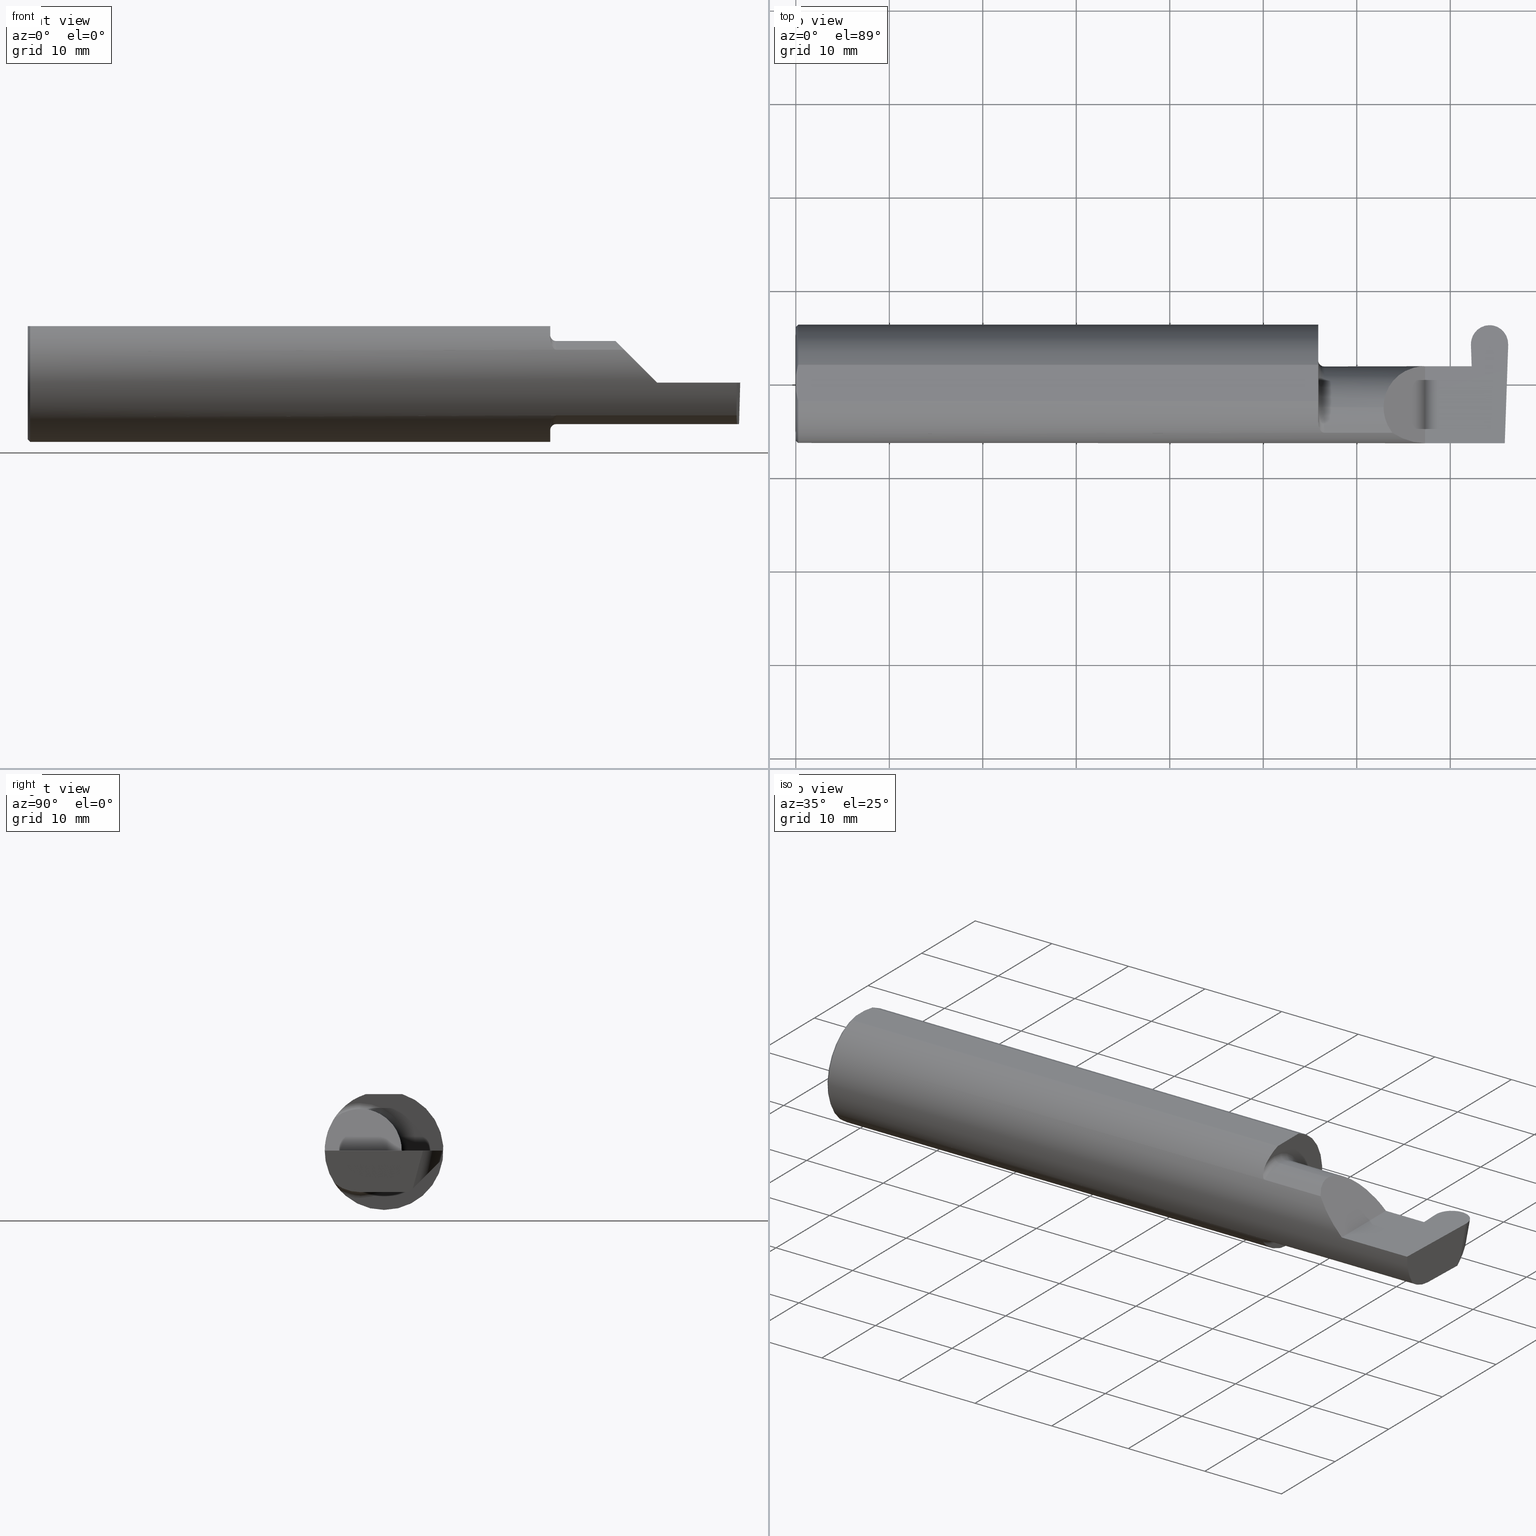
[diagram: canonical four-view strip — front | top / right | iso, engineering-drawing reading convention]
A machine part, canonical four-view strip (front | top / right | iso — engineering-drawing reading convention). The complete STEP part file that produces these views, byte-faithful:
ISO-10303-21;
HEADER;
FILE_DESCRIPTION (( 'STEP AP203' ),
    '1' );
FILE_NAME ('222488-GFR156-12.STEP',
    '2024-06-28T19:20:16',
    ( '' ),
    ( '' ),
    'SwSTEP 2.0',
    'SolidWorks 2024',
    '' );
FILE_SCHEMA (( 'CONFIG_CONTROL_DESIGN' ));
ENDSEC;

DATA;
#1 = DIRECTION ( 'NONE',  ( 0.000000000000000000, 0.9659258262890683122, -0.2588190451025210170 ) ) ;
#2 = EDGE_LOOP ( 'NONE', ( #607, #8, #167, #540 ) ) ;
#3 = CARTESIAN_POINT ( 'NONE',  ( 2.225000000000000089, -0.1008500000000000091, 0.000000000000000000 ) ) ;
#4 = ORIENTED_EDGE ( 'NONE', *, *, #733, .T. ) ;
#5 = CARTESIAN_POINT ( 'NONE',  ( 2.847162130284206061, 0.1205682248496117298, -0.1602561122985578790 ) ) ;
#6 = CONICAL_SURFACE ( 'NONE', #111, 0.2398500000000001742, 0.7853981633974466137 ) ;
#7 = AXIS2_PLACEMENT_3D ( 'NONE', #334, #591, #534 ) ;
#8 = ORIENTED_EDGE ( 'NONE', *, *, #221, .T. ) ;
#9 = CARTESIAN_POINT ( 'NONE',  ( 0.009999999999999856226, 0.000000000000000000, 0.000000000000000000 ) ) ;
#10 = ORIENTED_EDGE ( 'NONE', *, *, #370, .T. ) ;
#11 = CARTESIAN_POINT ( 'NONE',  ( 2.511704467739031887, -0.2080850024789288877, 0.1382955322609669413 ) ) ;
#12 = EDGE_CURVE ( 'NONE', #288, #556, #439, .T. ) ;
#13 = CARTESIAN_POINT ( 'NONE',  ( 2.969012533631873119, 0.2471500000000000918, 2.705682905371335382E-18 ) ) ;
#14 = ORIENTED_EDGE ( 'NONE', *, *, #599, .T. ) ;
#15 = DIRECTION ( 'NONE',  ( -1.000000000000000000, -0.000000000000000000, -0.000000000000000000 ) ) ;
#16 = CARTESIAN_POINT ( 'NONE',  ( 2.834942811380418259, 0.07414999999999977165, 0.000000000000000000 ) ) ;
#17 = ORIENTED_EDGE ( 'NONE', *, *, #767, .T. ) ;
#18 =( GEOMETRIC_REPRESENTATION_CONTEXT ( 3 ) GLOBAL_UNCERTAINTY_ASSIGNED_CONTEXT ( ( #708 ) ) GLOBAL_UNIT_ASSIGNED_CONTEXT ( ( #720, #89, #595 ) ) REPRESENTATION_CONTEXT ( 'NONE', 'WORKASPACE' ) );
#19 = CC_DESIGN_SECURITY_CLASSIFICATION ( #631, ( #699 ) ) ;
#20 = CARTESIAN_POINT ( 'NONE',  ( 2.834871741199312734, 0.07407892981889409312, -0.004071607948635301046 ) ) ;
#21 = ORIENTED_EDGE ( 'NONE', *, *, #428, .F. ) ;
#22 = CARTESIAN_POINT ( 'NONE',  ( 2.214302603425052141, -0.2041009206016212441, -0.1441313430770040926 ) ) ;
#23 = ADVANCED_FACE ( 'NONE', ( #694 ), #259, .F. ) ;
#24 = CARTESIAN_POINT ( 'NONE',  ( 2.200000000000000178, -0.1008500000000000368, 0.1999999999999999833 ) ) ;
#25 = DIRECTION ( 'NONE',  ( 1.000000000000000000, 0.000000000000000000, 0.000000000000000000 ) ) ;
#26 = AXIS2_PLACEMENT_3D ( 'NONE', #606, #231, #55 ) ;
#27 = VECTOR ( 'NONE', #729, 39.37007874015748854 ) ;
#28 = COORDINATED_UNIVERSAL_TIME_OFFSET ( 8, 0, .BEHIND. ) ;
#29 = LINE ( 'NONE', #99, #724 ) ;
#30 =( BOUNDED_CURVE ( )  B_SPLINE_CURVE ( 3, ( #77, #470, #13, #463 ),
 .UNSPECIFIED., .F., .T. ) 
 B_SPLINE_CURVE_WITH_KNOTS ( ( 4, 4 ),
 ( 1.637964922114649946, 3.237953570749842136 ),
 .UNSPECIFIED. ) 
 CURVE ( )  GEOMETRIC_REPRESENTATION_ITEM ( )  RATIONAL_B_SPLINE_CURVE ( ( 1.000000000000000000, 0.7978071872141907495, 0.7978071872141907495, 1.000000000000000000 ) ) 
 REPRESENTATION_ITEM ( '' )  );
#31 = ORIENTED_EDGE ( 'NONE', *, *, #819, .T. ) ;
#32 = CARTESIAN_POINT ( 'NONE',  ( 0.000000000000000000, 0.000000000000000000, 0.000000000000000000 ) ) ;
#33 = EDGE_CURVE ( 'NONE', #624, #305, #374, .T. ) ;
#34 = DIRECTION ( 'NONE',  ( -0.000000000000000000, 1.000000000000000000, -0.000000000000000000 ) ) ;
#35 = CARTESIAN_POINT ( 'NONE',  ( 2.200000000000000178, -0.1008499999999999952, -0.1750000000000000444 ) ) ;
#36 = VERTEX_POINT ( 'NONE', #821 ) ;
#37 = DATE_AND_TIME ( #357, #593 ) ;
#38 = CARTESIAN_POINT ( 'NONE',  ( 2.987584882537838826, -0.1008500000000001340, -0.1750000000000000722 ) ) ;
#39 = CC_DESIGN_PERSON_AND_ORGANIZATION_ASSIGNMENT ( #106, #804, ( #631 ) ) ;
#40 = FACE_OUTER_BOUND ( 'NONE', #690, .T. ) ;
#41 = ORIENTED_EDGE ( 'NONE', *, *, #456, .F. ) ;
#42 = PERSON_AND_ORGANIZATION ( #313, #551 ) ;
#43 = CIRCLE ( 'NONE', #779, 0.1999999999999999833 ) ;
#44 = VECTOR ( 'NONE', #358, 39.37007874015748143 ) ;
#45 = DIRECTION ( 'NONE',  ( -0.03701744261649942552, 0.7066221440565398915, 0.7066221440565477740 ) ) ;
#46 = CARTESIAN_POINT ( 'NONE',  ( 2.200000000000000178, 0.000000000000000000, 0.000000000000000000 ) ) ;
#47 = EDGE_CURVE ( 'NONE', #371, #794, #442, .T. ) ;
#48 = ORIENTED_EDGE ( 'NONE', *, *, #701, .F. ) ;
#49 = APPROVAL_DATE_TIME ( #164, #484 ) ;
#50 = DIRECTION ( 'NONE',  ( -1.000000000000000000, -0.000000000000000000, -0.000000000000000000 ) ) ;
#51 = CARTESIAN_POINT ( 'NONE',  ( 2.202968662030529323, -0.1849684355203378150, 0.1680843977756268370 ) ) ;
#52 = EDGE_CURVE ( 'NONE', #332, #323, #424, .T. ) ;
#53 = ORIENTED_EDGE ( 'NONE', *, *, #245, .F. ) ;
#54 = CARTESIAN_POINT ( 'NONE',  ( 2.921368310000000967, 0.2392271729750334863, -0.02956839299675443483 ) ) ;
#55 = DIRECTION ( 'NONE',  ( 0.000000000000000000, 0.000000000000000000, 1.000000000000000000 ) ) ;
#56 = ORIENTED_EDGE ( 'NONE', *, *, #588, .F. ) ;
#57 = ADVANCED_BREP_SHAPE_REPRESENTATION ( '222488-GFR156-12', ( #249, #445 ), #18 ) ;
#58 = EDGE_CURVE ( 'NONE', #383, #556, #324, .T. ) ;
#59 = AXIS2_PLACEMENT_3D ( 'NONE', #751, #182, #688 ) ;
#60 = AXIS2_PLACEMENT_3D ( 'NONE', #273, #652, #263 ) ;
#61 = CARTESIAN_POINT ( 'NONE',  ( 2.985143277913549831, -0.1771157075472509501, -0.1623092683844331308 ) ) ;
#62 = APPROVAL_PERSON_ORGANIZATION ( #792, #72, #289 ) ;
#63 = ORIENTED_EDGE ( 'NONE', *, *, #760, .F. ) ;
#64 = FACE_OUTER_BOUND ( 'NONE', #116, .T. ) ;
#65 = EDGE_CURVE ( 'NONE', #211, #418, #555, .T. ) ;
#66 = CARTESIAN_POINT ( 'NONE',  ( 0.000000000000000000, 0.000000000000000000, 0.000000000000000000 ) ) ;
#67 = DIRECTION ( 'NONE',  ( -0.7071067811865439090, 0.000000000000000000, -0.7071067811865511255 ) ) ;
#68 =( BOUNDED_CURVE ( )  B_SPLINE_CURVE ( 3, ( #5, #437, #258, #704 ),
 .UNSPECIFIED., .F., .F. ) 
 B_SPLINE_CURVE_WITH_KNOTS ( ( 4, 4 ),
 ( 1.556556287886218692, 3.148123430193717986 ),
 .UNSPECIFIED. ) 
 CURVE ( )  GEOMETRIC_REPRESENTATION_ITEM ( )  RATIONAL_B_SPLINE_CURVE ( ( 1.000000000000000000, 0.7998167921253449553, 0.7998167921253449553, 1.000000000000000000 ) ) 
 REPRESENTATION_ITEM ( '' )  );
#69 = CARTESIAN_POINT ( 'NONE',  ( 2.225000000000000089, -0.1008500000000000368, 0.000000000000000000 ) ) ;
#70 = ORIENTED_EDGE ( 'NONE', *, *, #689, .T. ) ;
#71 = DIRECTION ( 'NONE',  ( -0.000000000000000000, 1.000000000000000000, 1.224646799147353207E-16 ) ) ;
#72 = APPROVAL ( #600, 'UNSPECIFIED' ) ;
#73 = ORIENTED_EDGE ( 'NONE', *, *, #47, .F. ) ;
#74 = ORIENTED_EDGE ( 'NONE', *, *, #122, .F. ) ;
#75 = CARTESIAN_POINT ( 'NONE',  ( 2.600434159100402987, -0.2498499999999999610, 0.04956584089959713973 ) ) ;
#76 = AXIS2_PLACEMENT_3D ( 'NONE', #230, #50, #364 ) ;
#77 = CARTESIAN_POINT ( 'NONE',  ( 2.999872990785927396, 0.1635087207221616878, 0.000000000000000000 ) ) ;
#78 = ORIENTED_EDGE ( 'NONE', *, *, #366, .T. ) ;
#79 = DIRECTION ( 'NONE',  ( 0.000000000000000000, 0.000000000000000000, 1.000000000000000000 ) ) ;
#80 = ADVANCED_FACE ( 'NONE', ( #40 ), #414, .T. ) ;
#81 = CARTESIAN_POINT ( 'NONE',  ( 2.845984104502489398, 0.07414999999999977165, 0.000000000000000000 ) ) ;
#82 = ORIENTED_EDGE ( 'NONE', *, *, #186, .F. ) ;
#83 = PLANE ( 'NONE',  #815 ) ;
#84 = LINE ( 'NONE', #329, #500 ) ;
#85 = EDGE_CURVE ( 'NONE', #425, #422, #564, .T. ) ;
#86 = ORIENTED_EDGE ( 'NONE', *, *, #347, .T. ) ;
#87 = CARTESIAN_POINT ( 'NONE',  ( 2.847896006995016549, 0.07056399972053259417, -0.1057442486376092700 ) ) ;
#88 = VECTOR ( 'NONE', #45, 39.37007874015748854 ) ;
#89 =( NAMED_UNIT ( * ) PLANE_ANGLE_UNIT ( ) SI_UNIT ( $, .RADIAN. ) );
#90 = EDGE_CURVE ( 'NONE', #556, #757, #750, .T. ) ;
#91 = CARTESIAN_POINT ( 'NONE',  ( 0.009999999999999856226, 0.07650098038587520299, 0.2378499999999998671 ) ) ;
#92 = B_SPLINE_CURVE_WITH_KNOTS ( 'NONE', 3,
 ( #400, #155, #156, #731 ),
 .UNSPECIFIED., .F., .F.,
 ( 4, 4 ),
 ( 0.01317593029100230795, 0.01435802289191462008 ),
 .UNSPECIFIED. ) ;
#93 = DIRECTION ( 'NONE',  ( 0.02590004391968273034, 0.2587322210431824976, 0.9656017944882975268 ) ) ;
#94 = APPROVAL_STATUS ( 'not_yet_approved' ) ;
#95 = CARTESIAN_POINT ( 'NONE',  ( 2.221700027347579098, -0.2077785947292768165, -0.1387580622202825853 ) ) ;
#96 = EDGE_CURVE ( 'NONE', #812, #817, #176, .T. ) ;
#97 = ORIENTED_EDGE ( 'NONE', *, *, #143, .F. ) ;
#98 = AXIS2_PLACEMENT_3D ( 'NONE', #762, #15, #770 ) ;
#99 = CARTESIAN_POINT ( 'NONE',  ( -0.002039370078740339320, 0.1058243371481696476, -0.1750000000000001277 ) ) ;
#100 = DIRECTION ( 'NONE',  ( 1.000000000000000000, 0.000000000000000000, 0.000000000000000000 ) ) ;
#101 = VERTEX_POINT ( 'NONE', #301 ) ;
#102 = PERSON_AND_ORGANIZATION_ROLE ( 'design_supplier' ) ;
#103 = DIRECTION ( 'NONE',  ( 0.000000000000000000, 0.000000000000000000, 1.000000000000000000 ) ) ;
#104 = DIRECTION ( 'NONE',  ( 0.000000000000000000, 0.000000000000000000, -1.000000000000000000 ) ) ;
#105 = VERTEX_POINT ( 'NONE', #166 ) ;
#106 = PERSON_AND_ORGANIZATION ( #313, #551 ) ;
#107 = CARTESIAN_POINT ( 'NONE',  ( 0.000000000000000000, 0.2498499999999998500, 0.2378499999999998671 ) ) ;
#108 = EDGE_CURVE ( 'NONE', #633, #757, #360, .T. ) ;
#109 = CARTESIAN_POINT ( 'NONE',  ( 2.212616400345756240, -0.2024684335577102146, 0.1464246884265639481 ) ) ;
#110 = ORIENTED_EDGE ( 'NONE', *, *, #281, .T. ) ;
#111 = AXIS2_PLACEMENT_3D ( 'NONE', #66, #596, #275 ) ;
#112 = CARTESIAN_POINT ( 'NONE',  ( 2.650000000000000355, 0.07414999999999999369, 9.797174393178813824E-17 ) ) ;
#113 = CARTESIAN_POINT ( 'NONE',  ( 2.208182335268384033, -0.1972192205116130859, 0.1535061413537210928 ) ) ;
#114 = ORIENTED_EDGE ( 'NONE', *, *, #417, .F. ) ;
#115 = DIRECTION ( 'NONE',  ( -1.000000000000000000, -0.000000000000000000, -0.000000000000000000 ) ) ;
#116 = EDGE_LOOP ( 'NONE', ( #352, #769, #761 ) ) ;
#117 = EDGE_LOOP ( 'NONE', ( #307, #814, #206, #250, #488 ) ) ;
#118 =( BOUNDED_CURVE ( )  B_SPLINE_CURVE ( 3, ( #787, #785, #465, #658 ),
 .UNSPECIFIED., .F., .F. ) 
 B_SPLINE_CURVE_WITH_KNOTS ( ( 4, 4 ),
 ( 0.000000000000000000, 1.570796326794896336 ),
 .UNSPECIFIED. ) 
 CURVE ( )  GEOMETRIC_REPRESENTATION_ITEM ( )  RATIONAL_B_SPLINE_CURVE ( ( 1.000000000000000000, 0.8047378541243650485, 0.8047378541243650485, 1.000000000000000000 ) ) 
 REPRESENTATION_ITEM ( '' )  );
#119 = DIRECTION ( 'NONE',  ( -1.000000000000000000, -0.000000000000000000, -0.000000000000000000 ) ) ;
#120 = CARTESIAN_POINT ( 'NONE',  ( 0.000000000000000000, 0.000000000000000000, -0.2398500000000001742 ) ) ;
#121 = CARTESIAN_POINT ( 'NONE',  ( 2.650000000000000355, -0.2500000000000000555, 4.286263797015729199E-17 ) ) ;
#122 = EDGE_CURVE ( 'NONE', #36, #383, #389, .T. ) ;
#123 = VECTOR ( 'NONE', #321, 39.37007874015748143 ) ;
#124 = DIRECTION ( 'NONE',  ( -0.9992386149554828290, 0.03489418134010831979, 0.01745240643728358798 ) ) ;
#125 = AXIS2_PLACEMENT_3D ( 'NONE', #144, #401, #780 ) ;
#126 = DIRECTION ( 'NONE',  ( -0.01806954526206912617, 0.01744955702544859211, 0.9996844524616943506 ) ) ;
#127 = LOCAL_TIME ( 12, 20, 16.00000000000000000, #28 ) ;
#128 = EDGE_LOOP ( 'NONE', ( #460, #450, #734, #776 ) ) ;
#129 = CARTESIAN_POINT ( 'NONE',  ( 2.919979534775632324, 0.2275558934019543400, -0.07312620135282692224 ) ) ;
#130 = ORIENTED_EDGE ( 'NONE', *, *, #65, .T. ) ;
#131 = LINE ( 'NONE', #200, #601 ) ;
#132 = EDGE_LOOP ( 'NONE', ( #678, #721, #315 ) ) ;
#133 = DIRECTION ( 'NONE',  ( -0.02590004391968272687, -0.2587322210431824421, -0.9656017944882974158 ) ) ;
#134 = EDGE_LOOP ( 'NONE', ( #617, #74, #576, #70 ) ) ;
#135 = ADVANCED_FACE ( 'NONE', ( #227 ), #482, .F. ) ;
#136 = DIRECTION ( 'NONE',  ( 0.000000000000000000, -0.9998476951563912696, 0.01745240643728358451 ) ) ;
#137 = FACE_OUTER_BOUND ( 'NONE', #396, .T. ) ;
#138 = EDGE_LOOP ( 'NONE', ( #172, #467, #145, #297 ) ) ;
#139 = DIRECTION ( 'NONE',  ( 0.000000000000000000, 0.000000000000000000, -1.000000000000000000 ) ) ;
#140 = CYLINDRICAL_SURFACE ( 'NONE', #178, 0.1750000000000000444 ) ;
#141 = EDGE_LOOP ( 'NONE', ( #78, #225, #330, #17 ) ) ;
#142 = CARTESIAN_POINT ( 'NONE',  ( 2.200000000000000178, -0.1616050818046604054, -0.1905487340154980447 ) ) ;
#143 = EDGE_CURVE ( 'NONE', #36, #592, #342, .T. ) ;
#144 = CARTESIAN_POINT ( 'NONE',  ( 2.921288626691769696, 0.1664000941608517470, 0.001937958156663478889 ) ) ;
#145 = ORIENTED_EDGE ( 'NONE', *, *, #58, .T. ) ;
#146 = CARTESIAN_POINT ( 'NONE',  ( 2.849201506090199842, -0.1008500000000000368, -0.1750000000000000444 ) ) ;
#147 = APPROVAL ( #479, 'UNSPECIFIED' ) ;
#148 = ORIENTED_EDGE ( 'NONE', *, *, #366, .F. ) ;
#149 = DIRECTION ( 'NONE',  ( -0.03489949670249601482, 0.9993908270190959842, 0.000000000000000000 ) ) ;
#150 =( BOUNDED_CURVE ( )  B_SPLINE_CURVE ( 3, ( #373, #61, #759, #453 ),
 .UNSPECIFIED., .F., .F. ) 
 B_SPLINE_CURVE_WITH_KNOTS ( ( 4, 4 ),
 ( 0.4474640105399709245, 1.107026853503876085 ),
 .UNSPECIFIED. ) 
 CURVE ( )  GEOMETRIC_REPRESENTATION_ITEM ( )  RATIONAL_B_SPLINE_CURVE ( ( 1.000000000000000000, 0.9640754331822831702, 0.9640754331822831702, 1.000000000000000000 ) ) 
 REPRESENTATION_ITEM ( '' )  );
#151 = CIRCLE ( 'NONE', #345, 0.02499999999999993894 ) ;
#152 = VECTOR ( 'NONE', #115, 39.37007874015748143 ) ;
#153 = PRODUCT_DEFINITION_SHAPE ( 'NONE', 'NONE',  #291 ) ;
#154 = DIRECTION ( 'NONE',  ( -1.000000000000000000, -0.000000000000000000, -0.000000000000000000 ) ) ;
#155 = CARTESIAN_POINT ( 'NONE',  ( 0.005459900170181723050, -0.06167314502012866823, 0.2378499999999998671 ) ) ;
#156 = CARTESIAN_POINT ( 'NONE',  ( 0.001983148254845701515, -0.04629825796642599717, 0.2378499999999998671 ) ) ;
#157 = EDGE_CURVE ( 'NONE', #332, #36, #336, .T. ) ;
#158 = CARTESIAN_POINT ( 'NONE',  ( 2.200000000000000178, 0.07414999999999999369, 9.797174393178813824E-17 ) ) ;
#159 = CARTESIAN_POINT ( 'NONE',  ( 2.225000000000000089, -0.1008500000000000368, 0.1999999999999999833 ) ) ;
#160 = VECTOR ( 'NONE', #331, 39.37007874015748143 ) ;
#161 = ORIENTED_EDGE ( 'NONE', *, *, #12, .F. ) ;
#162 = AXIS2_PLACEMENT_3D ( 'NONE', #490, #796, #546 ) ;
#163 = LOCAL_TIME ( 12, 20, 16.00000000000000000, #284 ) ;
#164 = DATE_AND_TIME ( #735, #163 ) ;
#165 = LINE ( 'NONE', #432, #44 ) ;
#166 = CARTESIAN_POINT ( 'NONE',  ( 2.846094497492901887, 0.07404339472834124691, -0.006107411922953763853 ) ) ;
#167 = ORIENTED_EDGE ( 'NONE', *, *, #538, .T. ) ;
#168 = EDGE_CURVE ( 'NONE', #323, #422, #434, .T. ) ;
#169 = PERSON_AND_ORGANIZATION ( #313, #551 ) ;
#170 = CARTESIAN_POINT ( 'NONE',  ( 3.402190948718818664, -0.1008500000000001340, -0.1750000000000000722 ) ) ;
#171 = DIRECTION ( 'NONE',  ( 0.000000000000000000, 0.000000000000000000, -1.000000000000000000 ) ) ;
#172 = ORIENTED_EDGE ( 'NONE', *, *, #221, .F. ) ;
#173 = CALENDAR_DATE ( 2024, 28, 6 ) ;
#174 = ADVANCED_FACE ( 'NONE', ( #620 ), #497, .T. ) ;
#175 = LINE ( 'NONE', #412, #338 ) ;
#176 = LINE ( 'NONE', #487, #547 ) ;
#177 = ORIENTED_EDGE ( 'NONE', *, *, #739, .T. ) ;
#178 = AXIS2_PLACEMENT_3D ( 'NONE', #395, #154, #783 ) ;
#179 = LINE ( 'NONE', #542, #752 ) ;
#180 = ORIENTED_EDGE ( 'NONE', *, *, #739, .F. ) ;
#181 = PRODUCT_RELATED_PRODUCT_CATEGORY ( 'detail', '', ( #407 ) ) ;
#182 = DIRECTION ( 'NONE',  ( -1.000000000000000000, -0.000000000000000000, -0.000000000000000000 ) ) ;
#183 = ORIENTED_EDGE ( 'NONE', *, *, #760, .T. ) ;
#184 = CARTESIAN_POINT ( 'NONE',  ( 2.921368310000000967, 0.2348204004542366052, -0.04600393669393169210 ) ) ;
#185 = LINE ( 'NONE', #569, #160 ) ;
#186 = EDGE_CURVE ( 'NONE', #380, #229, #238, .T. ) ;
#187 = ORIENTED_EDGE ( 'NONE', *, *, #168, .T. ) ;
#188 = DIRECTION ( 'NONE',  ( -1.000000000000000000, -0.000000000000000000, -0.000000000000000000 ) ) ;
#189 = LINE ( 'NONE', #441, #628 ) ;
#190 = DIMENSIONAL_EXPONENTS ( 1.000000000000000000, 0.000000000000000000, 0.000000000000000000, 0.000000000000000000, 0.000000000000000000, 0.000000000000000000, 0.000000000000000000 ) ;
#191 = VERTEX_POINT ( 'NONE', #623 ) ;
#192 = CARTESIAN_POINT ( 'NONE',  ( 2.995574489715794542, 0.1205682248496117576, -0.1602561122985578790 ) ) ;
#193 = AXIS2_PLACEMENT_3D ( 'NONE', #3, #119, #378 ) ;
#194 = CARTESIAN_POINT ( 'NONE',  ( 0.002005502345409059580, 0.04647171987093979412, 0.2378499999999998671 ) ) ;
#195 = CC_DESIGN_APPROVAL ( #72, ( #631 ) ) ;
#196 = ORIENTED_EDGE ( 'NONE', *, *, #529, .F. ) ;
#197 = EDGE_CURVE ( 'NONE', #302, #425, #131, .T. ) ;
#198 = DIRECTION ( 'NONE',  ( 0.000000000000000000, 0.000000000000000000, 1.000000000000000000 ) ) ;
#199 = ORIENTED_EDGE ( 'NONE', *, *, #303, .T. ) ;
#200 = CARTESIAN_POINT ( 'NONE',  ( 0.000000000000000000, 0.000000000000000000, -0.2398500000000001742 ) ) ;
#201 = CARTESIAN_POINT ( 'NONE',  ( 2.842863629214074095, 0.1635087207221616323, 0.000000000000000000 ) ) ;
#202 = EDGE_CURVE ( 'NONE', #493, #559, #43, .T. ) ;
#203 = ORIENTED_EDGE ( 'NONE', *, *, #278, .T. ) ;
#204 = DIRECTION ( 'NONE',  ( -0.02590004391968273034, -0.2587322210431824421, -0.9656017944882974158 ) ) ;
#205 = CYLINDRICAL_SURFACE ( 'NONE', #7, 0.2498499999999999888 ) ;
#206 = ORIENTED_EDGE ( 'NONE', *, *, #670, .T. ) ;
#207 = CARTESIAN_POINT ( 'NONE',  ( 2.999872990785927396, 0.1635087207221616878, 0.000000000000000000 ) ) ;
#208 = AXIS2_PLACEMENT_3D ( 'NONE', #282, #427, #680 ) ;
#209 = ADVANCED_FACE ( 'NONE', ( #388 ), #572, .F. ) ;
#210 = CARTESIAN_POINT ( 'NONE',  ( 2.842784520300991158, 0.1657741035941333874, 0.000000000000000000 ) ) ;
#211 = VERTEX_POINT ( 'NONE', #580 ) ;
#212 = LINE ( 'NONE', #222, #645 ) ;
#213 = CC_DESIGN_PERSON_AND_ORGANIZATION_ASSIGNMENT ( #614, #298, ( #407 ) ) ;
#214 = DIRECTION ( 'NONE',  ( -0.01806954526206912617, 0.01744955702544859211, 0.9996844524616943506 ) ) ;
#215 = EDGE_LOOP ( 'NONE', ( #41, #503, #180, #361, #566, #781, #570, #73, #183 ) ) ;
#216 = CARTESIAN_POINT ( 'NONE',  ( 2.849170060624871326, -0.001152430219572287730, -0.1750000000000000722 ) ) ;
#217 = CARTESIAN_POINT ( 'NONE',  ( 0.000000000000000000, 0.03090954545120574992, 0.2378499999999998671 ) ) ;
#218 = CARTESIAN_POINT ( 'NONE',  ( 2.200000000000000178, -0.1716188362992555339, -0.1820560320165480472 ) ) ;
#219 = AXIS2_PLACEMENT_3D ( 'NONE', #9, #513, #251 ) ;
#220 = FACE_OUTER_BOUND ( 'NONE', #326, .T. ) ;
#221 = EDGE_CURVE ( 'NONE', #493, #757, #151, .T. ) ;
#222 = CARTESIAN_POINT ( 'NONE',  ( 2.999888224582237584, 0.1636609009256532465, 0.0005679442513367036422 ) ) ;
#223 = PERSON_AND_ORGANIZATION ( #313, #551 ) ;
#224 = PLANE ( 'NONE',  #684 ) ;
#225 = ORIENTED_EDGE ( 'NONE', *, *, #12, .T. ) ;
#226 = DIRECTION ( 'NONE',  ( 1.000000000000000000, -0.000000000000000000, -0.000000000000000000 ) ) ;
#227 = FACE_OUTER_BOUND ( 'NONE', #448, .T. ) ;
#228 = ADVANCED_FACE ( 'NONE', ( #519 ), #774, .T. ) ;
#229 = VERTEX_POINT ( 'NONE', #457 ) ;
#230 = CARTESIAN_POINT ( 'NONE',  ( 2.225000000000000089, -0.1008500000000000091, 0.000000000000000000 ) ) ;
#231 = DIRECTION ( 'NONE',  ( -1.000000000000000000, -0.000000000000000000, -0.000000000000000000 ) ) ;
#232 = ORIENTED_EDGE ( 'NONE', *, *, #402, .F. ) ;
#233 = DATE_AND_TIME ( #237, #272 ) ;
#234 = LINE ( 'NONE', #558, #764 ) ;
#235 = DIRECTION ( 'NONE',  ( 0.000000000000000000, 0.000000000000000000, -1.000000000000000000 ) ) ;
#236 = ORIENTED_EDGE ( 'NONE', *, *, #625, .T. ) ;
#237 = CALENDAR_DATE ( 2024, 28, 6 ) ;
#238 =( BOUNDED_CURVE ( )  B_SPLINE_CURVE ( 3, ( #317, #75, #709, #11 ),
 .UNSPECIFIED., .F., .F. ) 
 B_SPLINE_CURVE_WITH_KNOTS ( ( 4, 4 ),
 ( 4.712388980384689674, 5.298966915116348986 ),
 .UNSPECIFIED. ) 
 CURVE ( )  GEOMETRIC_REPRESENTATION_ITEM ( )  RATIONAL_B_SPLINE_CURVE ( ( 1.000000000000000000, 0.9715321379117536349, 0.9715321379117536349, 1.000000000000000000 ) ) 
 REPRESENTATION_ITEM ( '' )  );
#239 = CARTESIAN_POINT ( 'NONE',  ( 2.200000000000000178, 0.07404339472834127467, -0.006107411922952042140 ) ) ;
#240 = DIRECTION ( 'NONE',  ( 0.000000000000000000, -1.000000000000000000, 0.000000000000000000 ) ) ;
#241 = DIRECTION ( 'NONE',  ( -0.7071067811865511255, 0.000000000000000000, 0.7071067811865439090 ) ) ;
#242 = AXIS2_PLACEMENT_3D ( 'NONE', #328, #136, #262 ) ;
#243 = CIRCLE ( 'NONE', #76, 0.1750000000000000167 ) ;
#244 = CYLINDRICAL_SURFACE ( 'NONE', #406, 0.1750000000000000444 ) ;
#245 = EDGE_CURVE ( 'NONE', #302, #191, #799, .T. ) ;
#246 = CARTESIAN_POINT ( 'NONE',  ( 2.200000000000000178, 0.2498499999999998500, 0.2378499999999998671 ) ) ;
#247 = ORIENTED_EDGE ( 'NONE', *, *, #726, .F. ) ;
#248 = CARTESIAN_POINT ( 'NONE',  ( 0.009999999999999856226, 0.07650098038587520299, 0.2378499999999998671 ) ) ;
#249 = MANIFOLD_SOLID_BREP ( 'Radii', #535 ) ;
#250 = ORIENTED_EDGE ( 'NONE', *, *, #610, .T. ) ;
#251 = DIRECTION ( 'NONE',  ( 0.000000000000000000, 0.000000000000000000, -1.000000000000000000 ) ) ;
#252 = CARTESIAN_POINT ( 'NONE',  ( 0.000000000000000000, 0.03090954545120574992, 0.2378499999999998671 ) ) ;
#253 = EDGE_CURVE ( 'NONE', #747, #422, #765, .T. ) ;
#254 = VERTEX_POINT ( 'NONE', #509 ) ;
#255 = VECTOR ( 'NONE', #612, 39.37007874015748854 ) ;
#256 = CARTESIAN_POINT ( 'NONE',  ( 2.850147609618529643, -2.782351745012011879, -0.1805526503597116583 ) ) ;
#257 = EDGE_LOOP ( 'NONE', ( #743, #687, #640, #203, #784 ) ) ;
#258 = CARTESIAN_POINT ( 'NONE',  ( 2.874626783376907468, 0.2342636810864597019, -0.04656065606170858850 ) ) ;
#259 = PLANE ( 'NONE',  #763 ) ;
#260 = DIRECTION ( 'NONE',  ( 1.000000000000000000, 0.000000000000000000, 0.000000000000000000 ) ) ;
#261 = ORIENTED_EDGE ( 'NONE', *, *, #316, .T. ) ;
#262 = DIRECTION ( 'NONE',  ( 0.000000000000000000, -0.01745240643728358451, -0.9998476951563912696 ) ) ;
#263 = DIRECTION ( 'NONE',  ( 0.000000000000000000, 0.000000000000000000, -1.000000000000000000 ) ) ;
#264 = ORIENTED_EDGE ( 'NONE', *, *, #122, .T. ) ;
#265 = CARTESIAN_POINT ( 'NONE',  ( 2.212579853086618975, -0.2024300470081734638, -0.1464774911482685793 ) ) ;
#266 = CARTESIAN_POINT ( 'NONE',  ( 2.834907276289865052, 0.07411446490944693932, -0.002035803974317650523 ) ) ;
#267 = VERTEX_POINT ( 'NONE', #384 ) ;
#268 = AXIS2_PLACEMENT_3D ( 'NONE', #341, #462, #594 ) ;
#269 = ADVANCED_FACE ( 'NONE', ( #393 ), #525, .F. ) ;
#270 = CARTESIAN_POINT ( 'NONE',  ( 2.217611663768900065, -0.2061921161193829566, -0.1411075319999377797 ) ) ;
#271 = VECTOR ( 'NONE', #702, 39.37007874015748854 ) ;
#272 = LOCAL_TIME ( 12, 20, 16.00000000000000000, #545 ) ;
#273 = CARTESIAN_POINT ( 'NONE',  ( 0.000000000000000000, 0.000000000000000000, 0.000000000000000000 ) ) ;
#274 = ORIENTED_EDGE ( 'NONE', *, *, #767, .F. ) ;
#275 = DIRECTION ( 'NONE',  ( 0.000000000000000000, 0.000000000000000000, -1.000000000000000000 ) ) ;
#276 = LINE ( 'NONE', #408, #526 ) ;
#277 = CARTESIAN_POINT ( 'NONE',  ( 2.208176740666625726, -0.1972027065478072771, -0.1535263573771914747 ) ) ;
#278 = EDGE_CURVE ( 'NONE', #753, #267, #185, .T. ) ;
#279 = CARTESIAN_POINT ( 'NONE',  ( 2.200000000000000178, -0.07650098038587527238, 0.2378499999999998671 ) ) ;
#280 = VECTOR ( 'NONE', #797, 39.37007874015748143 ) ;
#281 = EDGE_CURVE ( 'NONE', #101, #332, #502, .T. ) ;
#282 = CARTESIAN_POINT ( 'NONE',  ( -0.002039370078740339320, 0.2471499999999999808, 0.000000000000000000 ) ) ;
#283 = ORIENTED_EDGE ( 'NONE', *, *, #477, .F. ) ;
#284 = COORDINATED_UNIVERSAL_TIME_OFFSET ( 8, 0, .BEHIND. ) ;
#285 = DIRECTION ( 'NONE',  ( 1.000000000000000000, -0.000000000000000000, -0.000000000000000000 ) ) ;
#286 = EDGE_CURVE ( 'NONE', #254, #499, #68, .T. ) ;
#287 = DIRECTION ( 'NONE',  ( 0.000000000000000000, 0.000000000000000000, 1.000000000000000000 ) ) ;
#288 = VERTEX_POINT ( 'NONE', #692 ) ;
#289 = APPROVAL_ROLE ( '' ) ;
#290 = DIRECTION ( 'NONE',  ( -0.03489949670249561930, -0.9993908270190959842, 1.222058880457094148E-16 ) ) ;
#291 = PRODUCT_DEFINITION ( 'UNKNOWN', '', #699, #773 ) ;
#292 = DIRECTION ( 'NONE',  ( 1.000000000000000000, 0.000000000000000000, 0.000000000000000000 ) ) ;
#293 = ORIENTED_EDGE ( 'NONE', *, *, #444, .T. ) ;
#294 = VECTOR ( 'NONE', #133, 39.37007874015748854 ) ;
#295 = CARTESIAN_POINT ( 'NONE',  ( 3.501298404146671484, 0.2498499999999998500, 0.2378499999999998671 ) ) ;
#296 = CARTESIAN_POINT ( 'NONE',  ( 2.217647060162628581, -0.2062109266231181848, 0.1410799729252291412 ) ) ;
#297 = ORIENTED_EDGE ( 'NONE', *, *, #90, .T. ) ;
#298 = PERSON_AND_ORGANIZATION_ROLE ( 'design_owner' ) ;
#299 = CARTESIAN_POINT ( 'NONE',  ( 2.225000000000000089, -0.1008500000000000368, 0.000000000000000000 ) ) ;
#300 = ORIENTED_EDGE ( 'NONE', *, *, #253, .F. ) ;
#301 = CARTESIAN_POINT ( 'NONE',  ( 0.009999999999999856226, -0.07650098038587520299, 0.2378499999999998671 ) ) ;
#302 = VERTEX_POINT ( 'NONE', #120 ) ;
#303 = EDGE_CURVE ( 'NONE', #753, #621, #150, .T. ) ;
#304 = DIRECTION ( 'NONE',  ( 0.000000000000000000, 0.000000000000000000, -1.000000000000000000 ) ) ;
#305 = VERTEX_POINT ( 'NONE', #515 ) ;
#306 = CARTESIAN_POINT ( 'NONE',  ( 2.206159563508734767, -0.1933019864360848439, 0.1584298865564832959 ) ) ;
#307 = ORIENTED_EDGE ( 'NONE', *, *, #477, .T. ) ;
#308 = VECTOR ( 'NONE', #350, 39.37007874015748143 ) ;
#309 = TOROIDAL_SURFACE ( 'NONE', #327, 0.1999999999999999833, 0.02499999999999994588 ) ;
#310 = CARTESIAN_POINT ( 'NONE',  ( 2.920795643315781120, 0.2471499999999999808, 0.000000000000000000 ) ) ;
#311 = DIRECTION ( 'NONE',  ( 0.7071067811865486830, 0.000000000000000000, -0.7071067811865462405 ) ) ;
#312 = DIRECTION ( 'NONE',  ( -0.02590004391968283443, 0.2587322210431824421, 0.9656017944882975268 ) ) ;
#313 = PERSON ( 'UNSPECIFIED', 'UNSPECIFIED', 'UNSPECIFIED', ('UNSPECIFIED'), ('UNSPECIFIED'), ('UNSPECIFIED') ) ;
#314 = CARTESIAN_POINT ( 'NONE',  ( 2.873724086368128372, 0.2471500000000001473, 1.543549517755541833E-17 ) ) ;
#315 = ORIENTED_EDGE ( 'NONE', *, *, #245, .T. ) ;
#316 = EDGE_CURVE ( 'NONE', #211, #105, #189, .T. ) ;
#317 = CARTESIAN_POINT ( 'NONE',  ( 2.650000000000000355, -0.2498499999999999610, 4.286263797015729199E-17 ) ) ;
#318 = ORIENTED_EDGE ( 'NONE', *, *, #278, .F. ) ;
#319 = CARTESIAN_POINT ( 'NONE',  ( 2.849201506090199842, -0.1008500000000000368, -0.1750000000000000444 ) ) ;
#320 = ORIENTED_EDGE ( 'NONE', *, *, #670, .F. ) ;
#321 = DIRECTION ( 'NONE',  ( 1.000000000000000000, 0.000000000000000000, 0.000000000000000000 ) ) ;
#322 = ADVANCED_FACE ( 'NONE', ( #379 ), #6, .T. ) ;
#323 = VERTEX_POINT ( 'NONE', #719 ) ;
#324 = CIRCLE ( 'NONE', #712, 0.02499999999999993894 ) ;
#325 = PLANE ( 'NONE',  #629 ) ;
#326 = EDGE_LOOP ( 'NONE', ( #318, #669, #714, #710, #274, #97, #403, #433, #803, #399, #514, #48, #114 ) ) ;
#327 = AXIS2_PLACEMENT_3D ( 'NONE', #69, #188, #818 ) ;
#328 = CARTESIAN_POINT ( 'NONE',  ( 2.845984104502489398, 0.07414999999999977165, 0.000000000000000000 ) ) ;
#329 = CARTESIAN_POINT ( 'NONE',  ( 2.533868310000000346, -0.2080850024789289987, 0.1382955322609668025 ) ) ;
#330 = ORIENTED_EDGE ( 'NONE', *, *, #689, .F. ) ;
#331 = DIRECTION ( 'NONE',  ( -1.000000000000000000, -0.000000000000000000, -0.000000000000000000 ) ) ;
#332 = VERTEX_POINT ( 'NONE', #279 ) ;
#333 = PLANE ( 'NONE',  #458 ) ;
#334 = CARTESIAN_POINT ( 'NONE',  ( 0.000000000000000000, 0.000000000000000000, 0.000000000000000000 ) ) ;
#335 = VERTEX_POINT ( 'NONE', #650 ) ;
#336 = CIRCLE ( 'NONE', #404, 0.2498499999999999888 ) ;
#337 = CARTESIAN_POINT ( 'NONE',  ( 2.846094497492901887, 0.07404339472834124691, -0.006107411922953763853 ) ) ;
#338 = VECTOR ( 'NONE', #285, 39.37007874015748143 ) ;
#339 = CARTESIAN_POINT ( 'NONE',  ( 2.474999999999998757, -0.1008500000000000091, 0.1750000000000000444 ) ) ;
#340 = ADVANCED_FACE ( 'NONE', ( #536 ), #83, .F. ) ;
#341 = CARTESIAN_POINT ( 'NONE',  ( 0.000000000000000000, 0.000000000000000000, 0.000000000000000000 ) ) ;
#342 = B_SPLINE_CURVE_WITH_KNOTS ( 'NONE', 3,
 ( #816, #802, #683, #738, #51, #306, #113, #109, #548, #296, #563, #616, #673, #560 ),
 .UNSPECIFIED., .F., .F.,
 ( 4, 2, 2, 2, 2, 2, 4 ),
 ( 0.0003834465838148164922, 0.0008781406165086602222, 0.001372834649202503898, 0.001867528681896347791, 0.002114875698243273532, 0.002238549206416744208, 0.002362222714590215319 ),
 .UNSPECIFIED. ) ;
#343 = EDGE_CURVE ( 'NONE', #633, #105, #700, .T. ) ;
#344 = CARTESIAN_POINT ( 'NONE',  ( 2.218863362722770294, -0.2068301641248770362, -0.1401678546132360537 ) ) ;
#345 = AXIS2_PLACEMENT_3D ( 'NONE', #696, #71, #79 ) ;
#346 = ORIENTED_EDGE ( 'NONE', *, *, #693, .F. ) ;
#347 = EDGE_CURVE ( 'NONE', #288, #478, #118, .T. ) ;
#348 = APPLICATION_PROTOCOL_DEFINITION ( 'international standard', 'config_control_design', 1994, #635 ) ;
#349 = DIRECTION ( 'NONE',  ( 1.000000000000000000, 0.000000000000000000, 0.000000000000000000 ) ) ;
#350 = DIRECTION ( 'NONE',  ( -0.03489949670249601482, 0.9993908270190959842, -1.222058880457094148E-16 ) ) ;
#351 = B_SPLINE_CURVE_WITH_KNOTS ( 'NONE', 3,
 ( #521, #20, #266, #16 ),
 .UNSPECIFIED., .F., .F.,
 ( 4, 4 ),
 ( 0.000000000000000000, 1.000000000000000000 ),
 .UNSPECIFIED. ) ;
#352 = ORIENTED_EDGE ( 'NONE', *, *, #343, .T. ) ;
#353 = DATE_TIME_ROLE ( 'classification_date' ) ;
#354 = LINE ( 'NONE', #423, #431 ) ;
#355 = DIRECTION ( 'NONE',  ( -1.000000000000000000, -0.000000000000000000, -0.000000000000000000 ) ) ;
#356 = ORIENTED_EDGE ( 'NONE', *, *, #402, .T. ) ;
#357 = CALENDAR_DATE ( 2024, 28, 6 ) ;
#358 = DIRECTION ( 'NONE',  ( -1.000000000000000000, -0.000000000000000000, -0.000000000000000000 ) ) ;
#359 = CC_DESIGN_DATE_AND_TIME_ASSIGNMENT ( #233, #353, ( #631 ) ) ;
#360 = LINE ( 'NONE', #35, #481 ) ;
#361 = ORIENTED_EDGE ( 'NONE', *, *, #96, .F. ) ;
#362 = VECTOR ( 'NONE', #349, 39.37007874015748143 ) ;
#363 = MECHANICAL_CONTEXT ( 'NONE', #473, 'mechanical' ) ;
#364 = DIRECTION ( 'NONE',  ( 0.000000000000000000, 0.000000000000000000, 1.000000000000000000 ) ) ;
#365 = DIRECTION ( 'NONE',  ( -1.000000000000000000, -0.000000000000000000, -0.000000000000000000 ) ) ;
#366 = EDGE_CURVE ( 'NONE', #229, #288, #491, .T. ) ;
#367 = ORIENTED_EDGE ( 'NONE', *, *, #664, .F. ) ;
#368 = LINE ( 'NONE', #801, #88 ) ;
#369 = CARTESIAN_POINT ( 'NONE',  ( 2.855818017474425208, -0.1199297631885134219, -0.1750000000000000722 ) ) ;
#370 = EDGE_CURVE ( 'NONE', #101, #191, #92, .T. ) ;
#371 = VERTEX_POINT ( 'NONE', #207 ) ;
#372 = CARTESIAN_POINT ( 'NONE',  ( 2.849201561102993718, -0.1010244175776144476, -0.1750000000000000722 ) ) ;
#373 = CARTESIAN_POINT ( 'NONE',  ( 2.984481223124517690, -0.2080850024789289987, -0.1382955322609668025 ) ) ;
#374 = LINE ( 'NONE', #385, #375 ) ;
#375 = VECTOR ( 'NONE', #312, 39.37007874015748854 ) ;
#376 = ADVANCED_FACE ( 'NONE', ( #410 ), #333, .F. ) ;
#377 = CC_DESIGN_APPROVAL ( #484, ( #699 ) ) ;
#378 = DIRECTION ( 'NONE',  ( 0.000000000000000000, 0.000000000000000000, 1.000000000000000000 ) ) ;
#379 = FACE_OUTER_BOUND ( 'NONE', #128, .T. ) ;
#380 = VERTEX_POINT ( 'NONE', #471 ) ;
#381 = LINE ( 'NONE', #210, #656 ) ;
#382 = CC_DESIGN_DATE_AND_TIME_ASSIGNMENT ( #557, #675, ( #291 ) ) ;
#383 = VERTEX_POINT ( 'NONE', #24 ) ;
#384 = CARTESIAN_POINT ( 'NONE',  ( 2.225000000000000089, -0.2080850024789288599, -0.1382955322609668025 ) ) ;
#385 = CARTESIAN_POINT ( 'NONE',  ( 2.918834969710874638, 0.2667364315176928846, 0.07309755756299828044 ) ) ;
#386 = CARTESIAN_POINT ( 'NONE',  ( 2.841163163816639692, 0.2122036785419297300, 1.942305813555199541E-17 ) ) ;
#387 = VERTEX_POINT ( 'NONE', #598 ) ;
#388 = FACE_OUTER_BOUND ( 'NONE', #649, .T. ) ;
#389 = CIRCLE ( 'NONE', #498, 0.1999999999999999833 ) ;
#390 = CARTESIAN_POINT ( 'NONE',  ( 2.984481223124517690, -0.2080850024789289987, -0.1382955322609668025 ) ) ;
#391 = ORIENTED_EDGE ( 'NONE', *, *, #33, .T. ) ;
#392 = AXIS2_PLACEMENT_3D ( 'NONE', #758, #124, #451 ) ;
#393 = FACE_OUTER_BOUND ( 'NONE', #138, .T. ) ;
#394 = ADVANCED_FACE ( 'NONE', ( #723 ), #728, .F. ) ;
#395 = CARTESIAN_POINT ( 'NONE',  ( 2.200000000000000178, -0.1008500000000000091, 0.000000000000000000 ) ) ;
#396 = EDGE_LOOP ( 'NONE', ( #527, #505, #531, #161, #86, #485, #575, #56 ) ) ;
#397 = DIRECTION ( 'NONE',  ( 0.9992386149554828290, 0.03489418134010871531, 0.01745240643728358798 ) ) ;
#398 = CYLINDRICAL_SURFACE ( 'NONE', #125, 0.07849999999999997258 ) ;
#399 = ORIENTED_EDGE ( 'NONE', *, *, #85, .T. ) ;
#400 = CARTESIAN_POINT ( 'NONE',  ( 0.009999999999999856226, -0.07650098038587520299, 0.2378499999999998671 ) ) ;
#401 = DIRECTION ( 'NONE',  ( 0.02590004391968283443, -0.2587322210431824976, -0.9656017944882975268 ) ) ;
#402 = EDGE_CURVE ( 'NONE', #430, #371, #212, .T. ) ;
#403 = ORIENTED_EDGE ( 'NONE', *, *, #157, .F. ) ;
#404 = AXIS2_PLACEMENT_3D ( 'NONE', #46, #811, #806 ) ;
#405 = CARTESIAN_POINT ( 'NONE',  ( 3.000000000000000444, -0.2500000000000000555, 0.000000000000000000 ) ) ;
#406 = AXIS2_PLACEMENT_3D ( 'NONE', #578, #440, #198 ) ;
#407 = PRODUCT ( '222488-GFR156-12', '222488-GFR156-12', '', ( #363 ) ) ;
#408 = CARTESIAN_POINT ( 'NONE',  ( 2.845984104502489398, 0.07414999999999977165, 0.000000000000000000 ) ) ;
#409 = ADVANCED_FACE ( 'NONE', ( #715 ), #512, .T. ) ;
#410 = FACE_OUTER_BOUND ( 'NONE', #215, .T. ) ;
#411 = CARTESIAN_POINT ( 'NONE',  ( 0.000000000000000000, 0.000000000000000000, 0.000000000000000000 ) ) ;
#412 = CARTESIAN_POINT ( 'NONE',  ( -0.002039370078740339320, 0.2471499999999999808, 0.000000000000000000 ) ) ;
#413 = AXIS2_PLACEMENT_3D ( 'NONE', #820, #204, #1 ) ;
#414 = PLANE ( 'NONE',  #682 ) ;
#415 = CIRCLE ( 'NONE', #219, 0.2498499999999999888 ) ;
#416 = CC_DESIGN_APPROVAL ( #147, ( #291 ) ) ;
#417 = EDGE_CURVE ( 'NONE', #267, #559, #727, .T. ) ;
#418 = VERTEX_POINT ( 'NONE', #468 ) ;
#419 = PERSON_AND_ORGANIZATION ( #313, #551 ) ;
#420 = LINE ( 'NONE', #170, #152 ) ;
#421 = CARTESIAN_POINT ( 'NONE',  ( 3.402190948718818664, -0.1008500000000001340, -0.1750000000000000722 ) ) ;
#422 = VERTEX_POINT ( 'NONE', #91 ) ;
#423 = CARTESIAN_POINT ( 'NONE',  ( 2.997444159268687347, 0.1562581541034807064, -0.1245661830446885138 ) ) ;
#424 = LINE ( 'NONE', #246, #280 ) ;
#425 = VERTEX_POINT ( 'NONE', #554 ) ;
#426 = DATE_AND_TIME ( #173, #737 ) ;
#427 = DIRECTION ( 'NONE',  ( 0.000000000000000000, -0.9659258262890682012, 0.2588190451025209615 ) ) ;
#428 = EDGE_CURVE ( 'NONE', #191, #747, #495, .T. ) ;
#429 = DIRECTION ( 'NONE',  ( 1.000000000000000000, -0.000000000000000000, -0.000000000000000000 ) ) ;
#430 = VERTEX_POINT ( 'NONE', #736 ) ;
#431 = VECTOR ( 'NONE', #609, 39.37007874015748854 ) ;
#432 = CARTESIAN_POINT ( 'NONE',  ( 4.499279347985562423E-32, -0.2498499999999999610, 3.673940397442054938E-16 ) ) ;
#433 = ORIENTED_EDGE ( 'NONE', *, *, #281, .F. ) ;
#434 = LINE ( 'NONE', #492, #655 ) ;
#435 = EDGE_LOOP ( 'NONE', ( #177, #496, #283, #561, #261, #31 ) ) ;
#436 = CARTESIAN_POINT ( 'NONE',  ( 2.984481223124517690, -0.2080850024789289987, -0.1382955322609668025 ) ) ;
#437 = CARTESIAN_POINT ( 'NONE',  ( 2.843700459396050206, 0.1866477033902743665, -0.09417663375789452063 ) ) ;
#438 = EDGE_CURVE ( 'NONE', #794, #380, #165, .T. ) ;
#439 = LINE ( 'NONE', #705, #644 ) ;
#440 = DIRECTION ( 'NONE',  ( -1.000000000000000000, -0.000000000000000000, -0.000000000000000000 ) ) ;
#441 = CARTESIAN_POINT ( 'NONE',  ( 2.845984104502489398, 0.07414999999999977165, 0.000000000000000000 ) ) ;
#442 = LINE ( 'NONE', #507, #255 ) ;
#443 = AXIS2_PLACEMENT_3D ( 'NONE', #634, #711, #139 ) ;
#444 = EDGE_CURVE ( 'NONE', #621, #633, #420, .T. ) ;
#445 = AXIS2_PLACEMENT_3D ( 'NONE', #32, #604, #618 ) ;
#446 = APPROVAL_PERSON_ORGANIZATION ( #223, #147, #795 ) ;
#447 = DIRECTION ( 'NONE',  ( 0.000000000000000000, -0.7071067811865435759, -0.7071067811865514585 ) ) ;
#448 = EDGE_LOOP ( 'NONE', ( #293, #4, #130, #455, #642 ) ) ;
#449 = DIRECTION ( 'NONE',  ( 0.000000000000000000, 0.000000000000000000, 1.000000000000000000 ) ) ;
#450 = ORIENTED_EDGE ( 'NONE', *, *, #786, .F. ) ;
#451 = DIRECTION ( 'NONE',  ( -0.03489949670249561930, -0.9993908270190959842, 0.000000000000000000 ) ) ;
#452 = ORIENTED_EDGE ( 'NONE', *, *, #819, .F. ) ;
#453 = CARTESIAN_POINT ( 'NONE',  ( 2.987584882537838826, -0.1008500000000001340, -0.1750000000000000722 ) ) ;
#454 = LINE ( 'NONE', #372, #271 ) ;
#455 = ORIENTED_EDGE ( 'NONE', *, *, #522, .T. ) ;
#456 = EDGE_CURVE ( 'NONE', #305, #766, #175, .T. ) ;
#457 = CARTESIAN_POINT ( 'NONE',  ( 2.511704467739031887, -0.2080850024789288877, 0.1382955322609669413 ) ) ;
#458 = AXIS2_PLACEMENT_3D ( 'NONE', #405, #602, #654 ) ;
#459 = DIRECTION ( 'NONE',  ( 1.000000000000000000, 0.000000000000000000, 0.000000000000000000 ) ) ;
#460 = ORIENTED_EDGE ( 'NONE', *, *, #197, .F. ) ;
#461 = CIRCLE ( 'NONE', #193, 0.1750000000000000167 ) ;
#462 = DIRECTION ( 'NONE',  ( 1.000000000000000000, 0.000000000000000000, 0.000000000000000000 ) ) ;
#463 = CARTESIAN_POINT ( 'NONE',  ( 2.921940976684220370, 0.2471499999999999808, 0.000000000000000000 ) ) ;
#464 = ORIENTED_EDGE ( 'NONE', *, *, #701, .T. ) ;
#465 = CARTESIAN_POINT ( 'NONE',  ( 2.547487373415290968, 0.07415000000000000757, 0.1025126265847084162 ) ) ;
#466 = CARTESIAN_POINT ( 'NONE',  ( 2.985438186182187259, -0.2498499999999999888, 0.000000000000000000 ) ) ;
#467 = ORIENTED_EDGE ( 'NONE', *, *, #469, .F. ) ;
#468 = CARTESIAN_POINT ( 'NONE',  ( 2.847934510574751776, 0.1058243371481696476, -0.1750000000000000722 ) ) ;
#469 = EDGE_CURVE ( 'NONE', #383, #493, #565, .T. ) ;
#470 = CARTESIAN_POINT ( 'NONE',  ( 3.001573456183361799, 0.2122036785419296745, -1.281880052625236500E-18 ) ) ;
#471 = CARTESIAN_POINT ( 'NONE',  ( 2.650000000000000355, -0.2498499999999999610, 4.286263797015729199E-17 ) ) ;
#472 = AXIS2_PLACEMENT_3D ( 'NONE', #256, #706, #567 ) ;
#473 = APPLICATION_CONTEXT ( 'configuration controlled 3d designs of mechanical parts and assemblies' ) ;
#474 = CARTESIAN_POINT ( 'NONE',  ( 2.487690731615565642, -0.1771157075472508391, 0.1623092683844331863 ) ) ;
#475 = SHAPE_DEFINITION_REPRESENTATION ( #153, #57 ) ;
#476 = CARTESIAN_POINT ( 'NONE',  ( 2.200000000000000178, -0.1008500000000000091, -0.1999999999999999833 ) ) ;
#477 = EDGE_CURVE ( 'NONE', #418, #254, #368, .T. ) ;
#478 = VERTEX_POINT ( 'NONE', #112 ) ;
#479 = APPROVAL_STATUS ( 'not_yet_approved' ) ;
#480 = DIRECTION ( 'NONE',  ( 1.000000000000000000, 0.000000000000000000, -0.000000000000000000 ) ) ;
#481 = VECTOR ( 'NONE', #355, 39.37007874015748143 ) ;
#482 = PLANE ( 'NONE',  #697 ) ;
#483 = AXIS2_PLACEMENT_3D ( 'NONE', #632, #260, #304 ) ;
#484 = APPROVAL ( #94, 'UNSPECIFIED' ) ;
#485 = ORIENTED_EDGE ( 'NONE', *, *, #581, .T. ) ;
#486 = LINE ( 'NONE', #158, #362 ) ;
#487 = CARTESIAN_POINT ( 'NONE',  ( 2.845984104502489398, 0.07414999999999977165, 0.000000000000000000 ) ) ;
#488 = ORIENTED_EDGE ( 'NONE', *, *, #522, .F. ) ;
#489 = APPROVAL_DATE_TIME ( #37, #147 ) ;
#490 = CARTESIAN_POINT ( 'NONE',  ( 2.200000000000000178, -0.1008500000000000091, 0.000000000000000000 ) ) ;
#491 =( BOUNDED_CURVE ( )  B_SPLINE_CURVE ( 3, ( #778, #474, #791, #339 ),
 .UNSPECIFIED., .F., .F. ) 
 B_SPLINE_CURVE_WITH_KNOTS ( ( 4, 4 ),
 ( 5.623622464215682015, 6.283185307179586232 ),
 .UNSPECIFIED. ) 
 CURVE ( )  GEOMETRIC_REPRESENTATION_ITEM ( )  RATIONAL_B_SPLINE_CURVE ( ( 1.000000000000000000, 0.9640754331822832812, 0.9640754331822832812, 1.000000000000000000 ) ) 
 REPRESENTATION_ITEM ( '' )  );
#492 = CARTESIAN_POINT ( 'NONE',  ( 0.000000000000000000, 0.07650098038587520299, 0.2378499999999998671 ) ) ;
#493 = VERTEX_POINT ( 'NONE', #476 ) ;
#494 = PERSON_AND_ORGANIZATION ( #313, #551 ) ;
#495 = LINE ( 'NONE', #107, #549 ) ;
#496 = ORIENTED_EDGE ( 'NONE', *, *, #749, .T. ) ;
#497 = CYLINDRICAL_SURFACE ( 'NONE', #59, 0.1750000000000000444 ) ;
#498 = AXIS2_PLACEMENT_3D ( 'NONE', #732, #543, #287 ) ;
#499 = VERTEX_POINT ( 'NONE', #741 ) ;
#500 = VECTOR ( 'NONE', #459, 39.37007874015748143 ) ;
#501 = CARTESIAN_POINT ( 'NONE',  ( 2.984244149176539018, -0.2355204011147991605, -0.09701513151466764628 ) ) ;
#502 = LINE ( 'NONE', #506, #123 ) ;
#503 = ORIENTED_EDGE ( 'NONE', *, *, #726, .T. ) ;
#504 = CARTESIAN_POINT ( 'NONE',  ( 2.985438186182187259, -0.2498499999999999888, 0.000000000000000000 ) ) ;
#505 = ORIENTED_EDGE ( 'NONE', *, *, #108, .T. ) ;
#506 = CARTESIAN_POINT ( 'NONE',  ( 0.000000000000000000, -0.07650098038587520299, 0.2378499999999998671 ) ) ;
#507 = CARTESIAN_POINT ( 'NONE',  ( 2.999952099699010333, 0.1657741035941333874, 0.000000000000000000 ) ) ;
#508 = CARTESIAN_POINT ( 'NONE',  ( 2.994802109425249714, 0.1058243371481696615, -0.1750000000000001277 ) ) ;
#509 = CARTESIAN_POINT ( 'NONE',  ( 2.847162130284206061, 0.1205682248496117298, -0.1602561122985578790 ) ) ;
#510 = EDGE_LOOP ( 'NONE', ( #148, #82, #14, #718 ) ) ;
#511 = AXIS2_PLACEMENT_3D ( 'NONE', #668, #100, #235 ) ;
#512 = CONICAL_SURFACE ( 'NONE', #590, 0.2398500000000001742, 0.7853981633974466137 ) ;
#513 = DIRECTION ( 'NONE',  ( 1.000000000000000000, 0.000000000000000000, 0.000000000000000000 ) ) ;
#514 = ORIENTED_EDGE ( 'NONE', *, *, #168, .F. ) ;
#515 = CARTESIAN_POINT ( 'NONE',  ( 2.920795643315781120, 0.2471499999999999808, 0.000000000000000000 ) ) ;
#516 = ADVANCED_FACE ( 'NONE', ( #745 ), #810, .F. ) ;
#517 = CARTESIAN_POINT ( 'NONE',  ( -0.002039370078740339320, 0.2348243371481683328, -0.04599999999999999922 ) ) ;
#518 = ORIENTED_EDGE ( 'NONE', *, *, #625, .F. ) ;
#519 = FACE_OUTER_BOUND ( 'NONE', #685, .T. ) ;
#520 =( BOUNDED_CURVE ( )  B_SPLINE_CURVE ( 3, ( #436, #501, #754, #504 ),
 .UNSPECIFIED., .F., .F. ) 
 B_SPLINE_CURVE_WITH_KNOTS ( ( 4, 4 ),
 ( 6.160376845738948504, 6.746954780470606039 ),
 .UNSPECIFIED. ) 
 CURVE ( )  GEOMETRIC_REPRESENTATION_ITEM ( )  RATIONAL_B_SPLINE_CURVE ( ( 1.000000000000000000, 0.9715321379117538569, 0.9715321379117538569, 1.000000000000000000 ) ) 
 REPRESENTATION_ITEM ( '' )  );
#521 = CARTESIAN_POINT ( 'NONE',  ( 2.834836206108759527, 0.07404339472834126079, -0.006107411922952949400 ) ) ;
#522 = EDGE_CURVE ( 'NONE', #418, #638, #29, .T. ) ;
#523 = ORIENTED_EDGE ( 'NONE', *, *, #197, .T. ) ;
#524 = CARTESIAN_POINT ( 'NONE',  ( 2.842784520300991158, 0.1657741035941333874, 0.000000000000000000 ) ) ;
#525 = TOROIDAL_SURFACE ( 'NONE', #98, 0.1999999999999999833, 0.02499999999999994588 ) ;
#526 = VECTOR ( 'NONE', #214, 39.37007874015748143 ) ;
#527 = ORIENTED_EDGE ( 'NONE', *, *, #343, .F. ) ;
#528 = CARTESIAN_POINT ( 'NONE',  ( 2.201385488563270432, -0.1808287530430326140, -0.1728790649396287904 ) ) ;
#529 = EDGE_CURVE ( 'NONE', #638, #621, #179, .T. ) ;
#530 = FACE_OUTER_BOUND ( 'NONE', #257, .T. ) ;
#531 = ORIENTED_EDGE ( 'NONE', *, *, #90, .F. ) ;
#532 = CC_DESIGN_PERSON_AND_ORGANIZATION_ASSIGNMENT ( #42, #662, ( #291 ) ) ;
#533 = CARTESIAN_POINT ( 'NONE',  ( 2.206147634408388569, -0.1932733126899460752, -0.1584637047788198805 ) ) ;
#534 = DIRECTION ( 'NONE',  ( 0.000000000000000000, 0.000000000000000000, 1.000000000000000000 ) ) ;
#535 = CLOSED_SHELL ( 'NONE', ( #639, #174, #643, #269, #409, #209, #808, #23, #376, #568, #394, #322, #550, #813, #80, #135, #516, #730, #340, #661, #716, #228, #777 ) ) ;
#536 = FACE_OUTER_BOUND ( 'NONE', #435, .T. ) ;
#537 = VECTOR ( 'NONE', #605, 39.37007874015748143 ) ;
#538 = EDGE_CURVE ( 'NONE', #757, #267, #243, .T. ) ;
#539 = DIRECTION ( 'NONE',  ( 0.000000000000000000, 0.000000000000000000, 1.000000000000000000 ) ) ;
#540 = ORIENTED_EDGE ( 'NONE', *, *, #417, .T. ) ;
#541 = CALENDAR_DATE ( 2024, 28, 6 ) ;
#542 = CARTESIAN_POINT ( 'NONE',  ( 2.988089862307433453, -0.08638927141514805841, -0.1750000000000000722 ) ) ;
#543 = DIRECTION ( 'NONE',  ( -1.000000000000000000, -0.000000000000000000, -0.000000000000000000 ) ) ;
#544 = ORIENTED_EDGE ( 'NONE', *, *, #52, .T. ) ;
#545 = COORDINATED_UNIVERSAL_TIME_OFFSET ( 8, 0, .BEHIND. ) ;
#546 = DIRECTION ( 'NONE',  ( 0.000000000000000000, 0.000000000000000000, 1.000000000000000000 ) ) ;
#547 = VECTOR ( 'NONE', #429, 39.37007874015748143 ) ;
#548 = CARTESIAN_POINT ( 'NONE',  ( 2.214343523383979662, -0.2041337200786083050, 0.1440846171672512943 ) ) ;
#549 = VECTOR ( 'NONE', #666, 39.37007874015748143 ) ;
#550 = ADVANCED_FACE ( 'NONE', ( #619 ), #665, .F. ) ;
#551 = ORGANIZATION ( 'UNSPECIFIED', 'UNSPECIFIED', '' ) ;
#552 = ORIENTED_EDGE ( 'NONE', *, *, #52, .F. ) ;
#553 = COORDINATED_UNIVERSAL_TIME_OFFSET ( 8, 0, .BEHIND. ) ;
#554 = CARTESIAN_POINT ( 'NONE',  ( 0.009999999999999856226, 0.000000000000000000, -0.2498499999999999888 ) ) ;
#555 = LINE ( 'NONE', #369, #308 ) ;
#556 = VERTEX_POINT ( 'NONE', #793 ) ;
#557 = DATE_AND_TIME ( #541, #127 ) ;
#558 = CARTESIAN_POINT ( 'NONE',  ( 2.650000000000000355, -0.2500000000000000555, 4.286263797015729199E-17 ) ) ;
#559 = VERTEX_POINT ( 'NONE', #686 ) ;
#560 = CARTESIAN_POINT ( 'NONE',  ( 2.225000000000000089, -0.2080850024789289987, 0.1382955322609667470 ) ) ;
#561 = ORIENTED_EDGE ( 'NONE', *, *, #65, .F. ) ;
#562 = PLANE ( 'NONE',  #392 ) ;
#563 = CARTESIAN_POINT ( 'NONE',  ( 2.218876997637614590, -0.2068363917296599797, 0.1401586554522229744 ) ) ;
#564 = CIRCLE ( 'NONE', #511, 0.2498499999999999888 ) ;
#565 = CIRCLE ( 'NONE', #162, 0.1999999999999999833 ) ;
#566 = ORIENTED_EDGE ( 'NONE', *, *, #581, .F. ) ;
#567 = DIRECTION ( 'NONE',  ( 0.01806679408117574034, 0.000000000000000000, -0.9998367821557817559 ) ) ;
#568 = ADVANCED_FACE ( 'NONE', ( #672 ), #224, .T. ) ;
#569 = CARTESIAN_POINT ( 'NONE',  ( 2.533868310000000346, -0.2080850024789289987, -0.1382955322609668025 ) ) ;
#570 = ORIENTED_EDGE ( 'NONE', *, *, #438, .F. ) ;
#571 = CARTESIAN_POINT ( 'NONE',  ( 2.968109836623094466, 0.2342636810864597019, -0.04656065606170858850 ) ) ;
#572 = PLANE ( 'NONE',  #242 ) ;
#573 = ORIENTED_EDGE ( 'NONE', *, *, #33, .F. ) ;
#574 = LINE ( 'NONE', #129, #294 ) ;
#575 = ORIENTED_EDGE ( 'NONE', *, *, #788, .F. ) ;
#576 = ORIENTED_EDGE ( 'NONE', *, *, #143, .T. ) ;
#577 = AXIS2_PLACEMENT_3D ( 'NONE', #299, #748, #539 ) ;
#578 = CARTESIAN_POINT ( 'NONE',  ( 2.200000000000000178, -0.1008500000000000091, 0.000000000000000000 ) ) ;
#579 = ORIENTED_EDGE ( 'NONE', *, *, #469, .T. ) ;
#580 = CARTESIAN_POINT ( 'NONE',  ( 2.849147273053401097, 0.07109536363756167876, -0.1750000000000000722 ) ) ;
#581 = EDGE_CURVE ( 'NONE', #478, #812, #486, .T. ) ;
#582 =( BOUNDED_CURVE ( )  B_SPLINE_CURVE ( 3, ( #637, #54, #768, #771 ),
 .UNSPECIFIED., .F., .F. ) 
 B_SPLINE_CURVE_WITH_KNOTS ( ( 4, 4 ),
 ( 4.712388980384690562, 4.720810486712381682 ),
 .UNSPECIFIED. ) 
 CURVE ( )  GEOMETRIC_REPRESENTATION_ITEM ( )  RATIONAL_B_SPLINE_CURVE ( ( 1.000000000000000000, 0.9999940898613302043, 0.9999940898613302043, 1.000000000000000000 ) ) 
 REPRESENTATION_ITEM ( '' )  );
#583 = CC_DESIGN_PERSON_AND_ORGANIZATION_ASSIGNMENT ( #169, #102, ( #699 ) ) ;
#584 = FACE_OUTER_BOUND ( 'NONE', #772, .T. ) ;
#585 = ORIENTED_EDGE ( 'NONE', *, *, #664, .T. ) ;
#586 = CARTESIAN_POINT ( 'NONE',  ( 0.005466242398876384675, 0.06169385855649840017, 0.2378499999999998671 ) ) ;
#587 = LENGTH_MEASURE_WITH_UNIT ( LENGTH_MEASURE( 0.02539999999999999897 ), #659 );
#588 = EDGE_CURVE ( 'NONE', #105, #387, #805, .T. ) ;
#589 = ORIENTED_EDGE ( 'NONE', *, *, #96, .T. ) ;
#590 = AXIS2_PLACEMENT_3D ( 'NONE', #411, #25, #663 ) ;
#591 = DIRECTION ( 'NONE',  ( -1.000000000000000000, -0.000000000000000000, -0.000000000000000000 ) ) ;
#592 = VERTEX_POINT ( 'NONE', #615 ) ;
#593 = LOCAL_TIME ( 12, 20, 16.00000000000000000, #553 ) ;
#594 = DIRECTION ( 'NONE',  ( 0.000000000000000000, 0.000000000000000000, -1.000000000000000000 ) ) ;
#595 =( NAMED_UNIT ( * ) SI_UNIT ( $, .STERADIAN. ) SOLID_ANGLE_UNIT ( ) );
#596 = DIRECTION ( 'NONE',  ( 1.000000000000000000, 0.000000000000000000, 0.000000000000000000 ) ) ;
#597 = CARTESIAN_POINT ( 'NONE',  ( 2.921940976684220370, 0.2471499999999999808, 0.000000000000000000 ) ) ;
#598 = CARTESIAN_POINT ( 'NONE',  ( 2.834836206108759527, 0.07404339472834126079, -0.006107411922952949400 ) ) ;
#599 = EDGE_CURVE ( 'NONE', #380, #478, #234, .T. ) ;
#600 = APPROVAL_STATUS ( 'not_yet_approved' ) ;
#601 = VECTOR ( 'NONE', #311, 39.37007874015748854 ) ;
#602 = DIRECTION ( 'NONE',  ( -1.224646799147351975E-16, 0.000000000000000000, -1.000000000000000000 ) ) ;
#603 = ORIENTED_EDGE ( 'NONE', *, *, #610, .F. ) ;
#604 = DIRECTION ( 'NONE',  ( 0.000000000000000000, 0.000000000000000000, 1.000000000000000000 ) ) ;
#605 = DIRECTION ( 'NONE',  ( -1.000000000000000000, -0.000000000000000000, -0.000000000000000000 ) ) ;
#606 = CARTESIAN_POINT ( 'NONE',  ( 2.225000000000000089, -0.1008500000000000091, 0.000000000000000000 ) ) ;
#607 = ORIENTED_EDGE ( 'NONE', *, *, #202, .F. ) ;
#608 = APPROVAL_ROLE ( '' ) ;
#609 = DIRECTION ( 'NONE',  ( -0.03701744261649914797, -0.7066221440565398915, -0.7066221440565477740 ) ) ;
#610 = EDGE_CURVE ( 'NONE', #430, #638, #354, .T. ) ;
#611 =( BOUNDED_CURVE ( )  B_SPLINE_CURVE ( 3, ( #184, #571, #626, #192 ),
 .UNSPECIFIED., .F., .F. ) 
 B_SPLINE_CURVE_WITH_KNOTS ( ( 4, 4 ),
 ( 3.135061876985868246, 4.726629019293367762 ),
 .UNSPECIFIED. ) 
 CURVE ( )  GEOMETRIC_REPRESENTATION_ITEM ( )  RATIONAL_B_SPLINE_CURVE ( ( 1.000000000000000000, 0.7998167921253448442, 0.7998167921253448442, 1.000000000000000000 ) ) 
 REPRESENTATION_ITEM ( '' )  );
#612 = DIRECTION ( 'NONE',  ( -0.03489949670249561930, -0.9993908270190959842, 0.000000000000000000 ) ) ;
#613 = ORIENTED_EDGE ( 'NONE', *, *, #651, .F. ) ;
#614 = PERSON_AND_ORGANIZATION ( #313, #551 ) ;
#615 = CARTESIAN_POINT ( 'NONE',  ( 2.225000000000000089, -0.2080850024789289987, 0.1382955322609667470 ) ) ;
#616 = CARTESIAN_POINT ( 'NONE',  ( 2.221718393013768722, -0.2077830475237241181, 0.1387513848711937059 ) ) ;
#617 = ORIENTED_EDGE ( 'NONE', *, *, #58, .F. ) ;
#618 = DIRECTION ( 'NONE',  ( 1.000000000000000000, 0.000000000000000000, 0.000000000000000000 ) ) ;
#619 = FACE_OUTER_BOUND ( 'NONE', #134, .T. ) ;
#620 = FACE_OUTER_BOUND ( 'NONE', #141, .T. ) ;
#621 = VERTEX_POINT ( 'NONE', #38 ) ;
#622 = PLANE ( 'NONE',  #472 ) ;
#623 = CARTESIAN_POINT ( 'NONE',  ( 0.000000000000000000, -0.03090954545120560767, 0.2378499999999998671 ) ) ;
#624 = VERTEX_POINT ( 'NONE', #676 ) ;
#625 = EDGE_CURVE ( 'NONE', #624, #499, #582, .T. ) ;
#626 = CARTESIAN_POINT ( 'NONE',  ( 2.999036160603951728, 0.1866477033902743943, -0.09417663375789452063 ) ) ;
#627 = DIRECTION ( 'NONE',  ( -1.000000000000000000, -0.000000000000000000, -0.000000000000000000 ) ) ;
#628 = VECTOR ( 'NONE', #126, 39.37007874015748143 ) ;
#629 = AXIS2_PLACEMENT_3D ( 'NONE', #517, #822, #447 ) ;
#630 = DIRECTION ( 'NONE',  ( -1.000000000000000000, -0.000000000000000000, -0.000000000000000000 ) ) ;
#631 = SECURITY_CLASSIFICATION ( '', '', #809 ) ;
#632 = CARTESIAN_POINT ( 'NONE',  ( 2.200000000000000178, 0.000000000000000000, 0.000000000000000000 ) ) ;
#633 = VERTEX_POINT ( 'NONE', #319 ) ;
#634 = CARTESIAN_POINT ( 'NONE',  ( 0.000000000000000000, 0.000000000000000000, 0.000000000000000000 ) ) ;
#635 = APPLICATION_CONTEXT ( 'configuration controlled 3d designs of mechanical parts and assemblies' ) ;
#636 = ORIENTED_EDGE ( 'NONE', *, *, #47, .T. ) ;
#637 = CARTESIAN_POINT ( 'NONE',  ( 2.921368310000001411, 0.2414292636342587894, -0.02135007877365307713 ) ) ;
#638 = VERTEX_POINT ( 'NONE', #508 ) ;
#639 = ADVANCED_FACE ( 'NONE', ( #137 ), #244, .T. ) ;
#640 = ORIENTED_EDGE ( 'NONE', *, *, #303, .F. ) ;
#641 = FACE_OUTER_BOUND ( 'NONE', #117, .T. ) ;
#642 = ORIENTED_EDGE ( 'NONE', *, *, #529, .T. ) ;
#643 = ADVANCED_FACE ( 'NONE', ( #691 ), #309, .F. ) ;
#644 = VECTOR ( 'NONE', #630, 39.37007874015748143 ) ;
#645 = VECTOR ( 'NONE', #93, 39.37007874015747433 ) ;
#646 = DIRECTION ( 'NONE',  ( -0.03489949670249602176, 0.9993908270190959842, -0.000000000000000000 ) ) ;
#647 = ORIENTED_EDGE ( 'NONE', *, *, #749, .F. ) ;
#648 = CC_DESIGN_PERSON_AND_ORGANIZATION_ASSIGNMENT ( #494, #671, ( #699 ) ) ;
#649 = EDGE_LOOP ( 'NONE', ( #452, #755, #807, #589 ) ) ;
#650 = CARTESIAN_POINT ( 'NONE',  ( 2.842863629214074095, 0.1635087207221616323, 0.000000000000000000 ) ) ;
#651 = EDGE_CURVE ( 'NONE', #753, #794, #520, .T. ) ;
#652 = DIRECTION ( 'NONE',  ( -1.000000000000000000, -0.000000000000000000, -0.000000000000000000 ) ) ;
#653 = ORIENTED_EDGE ( 'NONE', *, *, #370, .F. ) ;
#654 = DIRECTION ( 'NONE',  ( -1.000000000000000000, 0.000000000000000000, 1.224646799147351975E-16 ) ) ;
#655 = VECTOR ( 'NONE', #365, 39.37007874015748143 ) ;
#656 = VECTOR ( 'NONE', #646, 39.37007874015748143 ) ;
#657 = ORIENTED_EDGE ( 'NONE', *, *, #202, .T. ) ;
#658 = CARTESIAN_POINT ( 'NONE',  ( 2.650000000000000355, 0.07414999999999999369, 9.797174393178813824E-17 ) ) ;
#659 =( LENGTH_UNIT ( ) NAMED_UNIT ( * ) SI_UNIT ( $, .METRE. ) );
#660 = CARTESIAN_POINT ( 'NONE',  ( 2.225000000000000089, -0.2080850024789288599, -0.1382955322609668025 ) ) ;
#661 = ADVANCED_FACE ( 'NONE', ( #695 ), #562, .F. ) ;
#662 = PERSON_AND_ORGANIZATION_ROLE ( 'creator' ) ;
#663 = DIRECTION ( 'NONE',  ( 0.000000000000000000, 0.000000000000000000, -1.000000000000000000 ) ) ;
#664 = EDGE_CURVE ( 'NONE', #766, #624, #574, .T. ) ;
#665 = TOROIDAL_SURFACE ( 'NONE', #577, 0.1999999999999999833, 0.02499999999999994588 ) ;
#666 = DIRECTION ( 'NONE',  ( -0.000000000000000000, 1.000000000000000000, -0.000000000000000000 ) ) ;
#667 = APPROVAL_PERSON_ORGANIZATION ( #419, #484, #608 ) ;
#668 = CARTESIAN_POINT ( 'NONE',  ( 0.009999999999999856226, 0.000000000000000000, 0.000000000000000000 ) ) ;
#669 = ORIENTED_EDGE ( 'NONE', *, *, #651, .T. ) ;
#670 = EDGE_CURVE ( 'NONE', #499, #430, #611, .T. ) ;
#671 = PERSON_AND_ORGANIZATION_ROLE ( 'creator' ) ;
#672 = FACE_OUTER_BOUND ( 'NONE', #703, .T. ) ;
#673 = CARTESIAN_POINT ( 'NONE',  ( 2.223329956043142097, -0.2080850024798589493, 0.1382955322595675884 ) ) ;
#674 = ORIENTED_EDGE ( 'NONE', *, *, #286, .F. ) ;
#675 = DATE_TIME_ROLE ( 'creation_date' ) ;
#676 = CARTESIAN_POINT ( 'NONE',  ( 2.921368310000001411, 0.2414292636342587894, -0.02135007877365307713 ) ) ;
#677 = DIRECTION ( 'NONE',  ( 0.000000000000000000, -1.000000000000000000, 1.223176342469858124E-16 ) ) ;
#678 = ORIENTED_EDGE ( 'NONE', *, *, #428, .T. ) ;
#679 = APPROVAL_DATE_TIME ( #426, #72 ) ;
#680 = DIRECTION ( 'NONE',  ( 0.000000000000000000, -0.2588190451025209615, -0.9659258262890682012 ) ) ;
#681 = EDGE_LOOP ( 'NONE', ( #603, #356, #636, #613, #199, #196 ) ) ;
#682 = AXIS2_PLACEMENT_3D ( 'NONE', #746, #292, #104 ) ;
#683 = CARTESIAN_POINT ( 'NONE',  ( 2.200367168219774072, -0.1713400252854603567, 0.1819601557798506408 ) ) ;
#684 = AXIS2_PLACEMENT_3D ( 'NONE', #295, #103, #480 ) ;
#685 = EDGE_LOOP ( 'NONE', ( #232, #320, #518, #367, #63 ) ) ;
#686 = CARTESIAN_POINT ( 'NONE',  ( 2.200000000000000178, -0.1616050818046604054, -0.1905487340154980447 ) ) ;
#687 = ORIENTED_EDGE ( 'NONE', *, *, #444, .F. ) ;
#688 = DIRECTION ( 'NONE',  ( 0.000000000000000000, 0.000000000000000000, 1.000000000000000000 ) ) ;
#689 = EDGE_CURVE ( 'NONE', #592, #556, #461, .T. ) ;
#690 = EDGE_LOOP ( 'NONE', ( #464, #552, #798, #264, #579, #657 ) ) ;
#691 = FACE_OUTER_BOUND ( 'NONE', #2, .T. ) ;
#692 = CARTESIAN_POINT ( 'NONE',  ( 2.474999999999998757, -0.1008500000000000091, 0.1750000000000000444 ) ) ;
#693 = EDGE_CURVE ( 'NONE', #101, #425, #415, .T. ) ;
#694 = FACE_OUTER_BOUND ( 'NONE', #510, .T. ) ;
#695 = FACE_OUTER_BOUND ( 'NONE', #681, .T. ) ;
#696 = CARTESIAN_POINT ( 'NONE',  ( 2.225000000000000089, -0.1008500000000000091, -0.1999999999999999833 ) ) ;
#697 = AXIS2_PLACEMENT_3D ( 'NONE', #421, #742, #677 ) ;
#698 = ORIENTED_EDGE ( 'NONE', *, *, #456, .T. ) ;
#699 = PRODUCT_DEFINITION_FORMATION_WITH_SPECIFIED_SOURCE ( 'ANY', '', #407, .NOT_KNOWN. ) ;
#700 =( BOUNDED_CURVE ( )  B_SPLINE_CURVE ( 3, ( #146, #216, #87, #337 ),
 .UNSPECIFIED., .F., .T. ) 
 B_SPLINE_CURVE_WITH_KNOTS ( ( 4, 4 ),
 ( 3.159045946109736214, 4.694935687864654206 ),
 .UNSPECIFIED. ) 
 CURVE ( )  GEOMETRIC_REPRESENTATION_ITEM ( )  RATIONAL_B_SPLINE_CURVE ( ( 1.000000000000000000, 0.8128932002257887035, 0.8128932002257887035, 1.000000000000000000 ) ) 
 REPRESENTATION_ITEM ( '' )  );
#701 = EDGE_CURVE ( 'NONE', #559, #323, #800, .T. ) ;
#702 = DIRECTION ( 'NONE',  ( -0.0003154085283454420899, 0.9999999502587288980, -1.223178646569382945E-16 ) ) ;
#703 = EDGE_LOOP ( 'NONE', ( #110, #544, #187, #300, #21, #653 ) ) ;
#704 = CARTESIAN_POINT ( 'NONE',  ( 2.921368310000000967, 0.2348204004542366052, -0.04600393669393169210 ) ) ;
#705 = CARTESIAN_POINT ( 'NONE',  ( 2.200000000000000178, -0.1008500000000000091, 0.1750000000000000444 ) ) ;
#706 = DIRECTION ( 'NONE',  ( 0.9998367324388628408, 0.0003153570480505199394, 0.01806679318280377325 ) ) ;
#707 = EDGE_LOOP ( 'NONE', ( #585, #391, #698 ) ) ;
#708 = UNCERTAINTY_MEASURE_WITH_UNIT (LENGTH_MEASURE( 1.000000000000000082E-05 ), #720, 'distance_accuracy_value', 'NONE');
#709 = CARTESIAN_POINT ( 'NONE',  ( 2.552984868485331571, -0.2355204011147991605, 0.09701513151466779894 ) ) ;
#710 = ORIENTED_EDGE ( 'NONE', *, *, #186, .T. ) ;
#711 = DIRECTION ( 'NONE',  ( -1.000000000000000000, -0.000000000000000000, -0.000000000000000000 ) ) ;
#712 = AXIS2_PLACEMENT_3D ( 'NONE', #159, #240, #171 ) ;
#713 = CARTESIAN_POINT ( 'NONE',  ( 2.834942811380418259, 0.07414999999999977165, 0.000000000000000000 ) ) ;
#714 = ORIENTED_EDGE ( 'NONE', *, *, #438, .T. ) ;
#715 = FACE_OUTER_BOUND ( 'NONE', #740, .T. ) ;
#716 = ADVANCED_FACE ( 'NONE', ( #64 ), #622, .F. ) ;
#717 = CARTESIAN_POINT ( 'NONE',  ( 2.225000000000000089, -0.1008500000000000091, -0.1750000000000000167 ) ) ;
#718 = ORIENTED_EDGE ( 'NONE', *, *, #347, .F. ) ;
#719 = CARTESIAN_POINT ( 'NONE',  ( 2.200000000000000178, 0.07650098038587520299, 0.2378499999999998671 ) ) ;
#720 =( CONVERSION_BASED_UNIT ( 'INCH', #587 ) LENGTH_UNIT ( ) NAMED_UNIT ( #190 ) );
#721 = ORIENTED_EDGE ( 'NONE', *, *, #786, .T. ) ;
#722 =( BOUNDED_CURVE ( )  B_SPLINE_CURVE ( 3, ( #310, #314, #386, #201 ),
 .UNSPECIFIED., .F., .F. ) 
 B_SPLINE_CURVE_WITH_KNOTS ( ( 4, 4 ),
 ( 3.045231736429742764, 4.645220385064936508 ),
 .UNSPECIFIED. ) 
 CURVE ( )  GEOMETRIC_REPRESENTATION_ITEM ( )  RATIONAL_B_SPLINE_CURVE ( ( 1.000000000000000000, 0.7978071872141905274, 0.7978071872141905274, 1.000000000000000000 ) ) 
 REPRESENTATION_ITEM ( '' )  );
#723 = FACE_OUTER_BOUND ( 'NONE', #132, .T. ) ;
#724 = VECTOR ( 'NONE', #226, 39.37007874015748143 ) ;
#725 = LINE ( 'NONE', #775, #27 ) ;
#726 = EDGE_CURVE ( 'NONE', #305, #335, #722, .T. ) ;
#727 = B_SPLINE_CURVE_WITH_KNOTS ( 'NONE', 3,
 ( #660, #782, #95, #344, #270, #22, #265, #277, #533, #528, #218, #142 ),
 .UNSPECIFIED., .F., .F.,
 ( 4, 2, 2, 2, 2, 4 ),
 ( 1.964491429042083594E-07, 0.0001260981470478305614, 0.0002519998449527569430, 0.0005038032407626228792, 0.001007410032382354426, 0.002014623615621823158 ),
 .UNSPECIFIED. ) ;
#728 = PLANE ( 'NONE',  #268 ) ;
#729 = DIRECTION ( 'NONE',  ( 0.02590004391968283443, -0.2587322210431824421, -0.9656017944882975268 ) ) ;
#730 = ADVANCED_FACE ( 'NONE', ( #641 ), #325, .F. ) ;
#731 = CARTESIAN_POINT ( 'NONE',  ( 0.000000000000000000, -0.03090954545120560767, 0.2378499999999998671 ) ) ;
#732 = CARTESIAN_POINT ( 'NONE',  ( 2.200000000000000178, -0.1008500000000000091, 0.000000000000000000 ) ) ;
#733 = EDGE_CURVE ( 'NONE', #633, #211, #454, .T. ) ;
#734 = ORIENTED_EDGE ( 'NONE', *, *, #253, .T. ) ;
#735 = CALENDAR_DATE ( 2024, 28, 6 ) ;
#736 = CARTESIAN_POINT ( 'NONE',  ( 2.995574489715794542, 0.1205682248496117576, -0.1602561122985578790 ) ) ;
#737 = LOCAL_TIME ( 12, 20, 16.00000000000000000, #744 ) ;
#738 = CARTESIAN_POINT ( 'NONE',  ( 2.201849548162864156, -0.1805300287242673496, 0.1728462070311780341 ) ) ;
#739 = EDGE_CURVE ( 'NONE', #817, #335, #381, .T. ) ;
#740 = EDGE_LOOP ( 'NONE', ( #53, #523, #346, #10 ) ) ;
#741 = CARTESIAN_POINT ( 'NONE',  ( 2.921368310000000967, 0.2348204004542366052, -0.04600393669393169210 ) ) ;
#742 = DIRECTION ( 'NONE',  ( -0.000000000000000000, 1.223176342469858124E-16, 1.000000000000000000 ) ) ;
#743 = ORIENTED_EDGE ( 'NONE', *, *, #108, .F. ) ;
#744 = COORDINATED_UNIVERSAL_TIME_OFFSET ( 8, 0, .BEHIND. ) ;
#745 = FACE_OUTER_BOUND ( 'NONE', #707, .T. ) ;
#746 = CARTESIAN_POINT ( 'NONE',  ( 2.200000000000000178, 0.2498499999999999333, 0.000000000000000000 ) ) ;
#747 = VERTEX_POINT ( 'NONE', #217 ) ;
#748 = DIRECTION ( 'NONE',  ( -1.000000000000000000, -0.000000000000000000, -0.000000000000000000 ) ) ;
#749 = EDGE_CURVE ( 'NONE', #335, #254, #725, .T. ) ;
#750 = CIRCLE ( 'NONE', #26, 0.1750000000000000167 ) ;
#751 = CARTESIAN_POINT ( 'NONE',  ( 2.200000000000000178, -0.1008500000000000091, 0.000000000000000000 ) ) ;
#752 = VECTOR ( 'NONE', #290, 39.37007874015748143 ) ;
#753 = VERTEX_POINT ( 'NONE', #390 ) ;
#754 = CARTESIAN_POINT ( 'NONE',  ( 2.984572483848591862, -0.2498499999999999610, -0.04956584089959709116 ) ) ;
#755 = ORIENTED_EDGE ( 'NONE', *, *, #588, .T. ) ;
#756 = CARTESIAN_POINT ( 'NONE',  ( 2.200000000000000178, -0.1008500000000000091, 0.000000000000000000 ) ) ;
#757 = VERTEX_POINT ( 'NONE', #717 ) ;
#758 = CARTESIAN_POINT ( 'NONE',  ( 2.999952099699010333, 0.1657741035941333874, 0.000000000000000000 ) ) ;
#759 = CARTESIAN_POINT ( 'NONE',  ( 2.986216381845219203, -0.1400387324517231580, -0.1750000000000000167 ) ) ;
#760 = EDGE_CURVE ( 'NONE', #371, #766, #30, .T. ) ;
#761 = ORIENTED_EDGE ( 'NONE', *, *, #733, .F. ) ;
#762 = CARTESIAN_POINT ( 'NONE',  ( 2.225000000000000089, -0.1008500000000000368, 0.000000000000000000 ) ) ;
#763 = AXIS2_PLACEMENT_3D ( 'NONE', #121, #67, #241 ) ;
#764 = VECTOR ( 'NONE', #34, 39.37007874015748143 ) ;
#765 = B_SPLINE_CURVE_WITH_KNOTS ( 'NONE', 3,
 ( #252, #194, #586, #248 ),
 .UNSPECIFIED., .F., .F.,
 ( 4, 4 ),
 ( 0.01593449416844770414, 0.01712021724825603733 ),
 .UNSPECIFIED. ) ;
#766 = VERTEX_POINT ( 'NONE', #597 ) ;
#767 = EDGE_CURVE ( 'NONE', #592, #229, #84, .T. ) ;
#768 = CARTESIAN_POINT ( 'NONE',  ( 2.921368310000000967, 0.2370242055618500543, -0.03778639420637353030 ) ) ;
#769 = ORIENTED_EDGE ( 'NONE', *, *, #316, .F. ) ;
#770 = DIRECTION ( 'NONE',  ( 0.000000000000000000, 0.000000000000000000, 1.000000000000000000 ) ) ;
#771 = CARTESIAN_POINT ( 'NONE',  ( 2.921368310000000967, 0.2348204004542366052, -0.04600393669393169210 ) ) ;
#772 = EDGE_LOOP ( 'NONE', ( #247, #573, #236, #674, #647 ) ) ;
#773 = DESIGN_CONTEXT ( 'detailed design', #635, 'design' ) ;
#774 = CYLINDRICAL_SURFACE ( 'NONE', #413, 0.07850000000000000033 ) ;
#775 = CARTESIAN_POINT ( 'NONE',  ( 2.842848395417763907, 0.1636609009256532188, 0.0005679442513367187126 ) ) ;
#776 = ORIENTED_EDGE ( 'NONE', *, *, #85, .F. ) ;
#777 = ADVANCED_FACE ( 'NONE', ( #584 ), #398, .T. ) ;
#778 = CARTESIAN_POINT ( 'NONE',  ( 2.511704467739031887, -0.2080850024789288877, 0.1382955322609669413 ) ) ;
#779 = AXIS2_PLACEMENT_3D ( 'NONE', #756, #627, #449 ) ;
#780 = DIRECTION ( 'NONE',  ( 0.000000000000000000, 0.9659258262890683122, -0.2588190451025211281 ) ) ;
#781 = ORIENTED_EDGE ( 'NONE', *, *, #599, .F. ) ;
#782 = CARTESIAN_POINT ( 'NONE',  ( 2.223318040126429640, -0.2080850024789291097, -0.1382955322609667193 ) ) ;
#783 = DIRECTION ( 'NONE',  ( 0.000000000000000000, 0.000000000000000000, 1.000000000000000000 ) ) ;
#784 = ORIENTED_EDGE ( 'NONE', *, *, #538, .F. ) ;
#785 = CARTESIAN_POINT ( 'NONE',  ( 2.474999999999998757, 0.001662626584708354381, 0.1750000000000000167 ) ) ;
#786 = EDGE_CURVE ( 'NONE', #747, #302, #789, .T. ) ;
#787 = CARTESIAN_POINT ( 'NONE',  ( 2.474999999999998757, -0.1008500000000000091, 0.1750000000000000444 ) ) ;
#788 = EDGE_CURVE ( 'NONE', #387, #812, #351, .T. ) ;
#789 = CIRCLE ( 'NONE', #60, 0.2398500000000001742 ) ;
#790 = APPLICATION_PROTOCOL_DEFINITION ( 'international standard', 'config_control_design', 1994, #473 ) ;
#791 = CARTESIAN_POINT ( 'NONE',  ( 2.474999999999998757, -0.1400387324517230747, 0.1750000000000000444 ) ) ;
#792 = PERSON_AND_ORGANIZATION ( #313, #551 ) ;
#793 = CARTESIAN_POINT ( 'NONE',  ( 2.225000000000000089, -0.1008500000000000368, 0.1750000000000000167 ) ) ;
#794 = VERTEX_POINT ( 'NONE', #466 ) ;
#795 = APPROVAL_ROLE ( '' ) ;
#796 = DIRECTION ( 'NONE',  ( -1.000000000000000000, -0.000000000000000000, -0.000000000000000000 ) ) ;
#797 = DIRECTION ( 'NONE',  ( 0.000000000000000000, 1.000000000000000000, 0.000000000000000000 ) ) ;
#798 = ORIENTED_EDGE ( 'NONE', *, *, #157, .T. ) ;
#799 = CIRCLE ( 'NONE', #443, 0.2398500000000001742 ) ;
#800 = CIRCLE ( 'NONE', #483, 0.2498499999999999888 ) ;
#801 = CARTESIAN_POINT ( 'NONE',  ( 2.837280621926297819, 0.3091953186960626487, 0.02837098154789517018 ) ) ;
#802 = CARTESIAN_POINT ( 'NONE',  ( 2.199999999999999734, -0.1665641037263009272, 0.1863429692936361681 ) ) ;
#803 = ORIENTED_EDGE ( 'NONE', *, *, #693, .T. ) ;
#804 = PERSON_AND_ORGANIZATION_ROLE ( 'classification_officer' ) ;
#805 = LINE ( 'NONE', #239, #537 ) ;
#806 = DIRECTION ( 'NONE',  ( 0.000000000000000000, 0.000000000000000000, -1.000000000000000000 ) ) ;
#807 = ORIENTED_EDGE ( 'NONE', *, *, #788, .T. ) ;
#808 = ADVANCED_FACE ( 'NONE', ( #220 ), #205, .T. ) ;
#809 = SECURITY_CLASSIFICATION_LEVEL ( 'unclassified' ) ;
#810 = PLANE ( 'NONE',  #208 ) ;
#811 = DIRECTION ( 'NONE',  ( 1.000000000000000000, 0.000000000000000000, 0.000000000000000000 ) ) ;
#812 = VERTEX_POINT ( 'NONE', #713 ) ;
#813 = ADVANCED_FACE ( 'NONE', ( #530 ), #140, .T. ) ;
#814 = ORIENTED_EDGE ( 'NONE', *, *, #286, .T. ) ;
#815 = AXIS2_PLACEMENT_3D ( 'NONE', #524, #397, #149 ) ;
#816 = CARTESIAN_POINT ( 'NONE',  ( 2.200000000000000178, -0.1616050818046604054, 0.1905487340154980447 ) ) ;
#817 = VERTEX_POINT ( 'NONE', #81 ) ;
#818 = DIRECTION ( 'NONE',  ( 0.000000000000000000, 0.000000000000000000, 1.000000000000000000 ) ) ;
#819 = EDGE_CURVE ( 'NONE', #105, #817, #276, .T. ) ;
#820 = CARTESIAN_POINT ( 'NONE',  ( 2.919979534775631880, 0.1517307160382624642, -0.05280890631227902476 ) ) ;
#821 = CARTESIAN_POINT ( 'NONE',  ( 2.200000000000000178, -0.1616050818046604054, 0.1905487340154980447 ) ) ;
#822 = DIRECTION ( 'NONE',  ( 0.000000000000000000, -0.7071067811865514585, 0.7071067811865435759 ) ) ;
ENDSEC;
END-ISO-10303-21;
